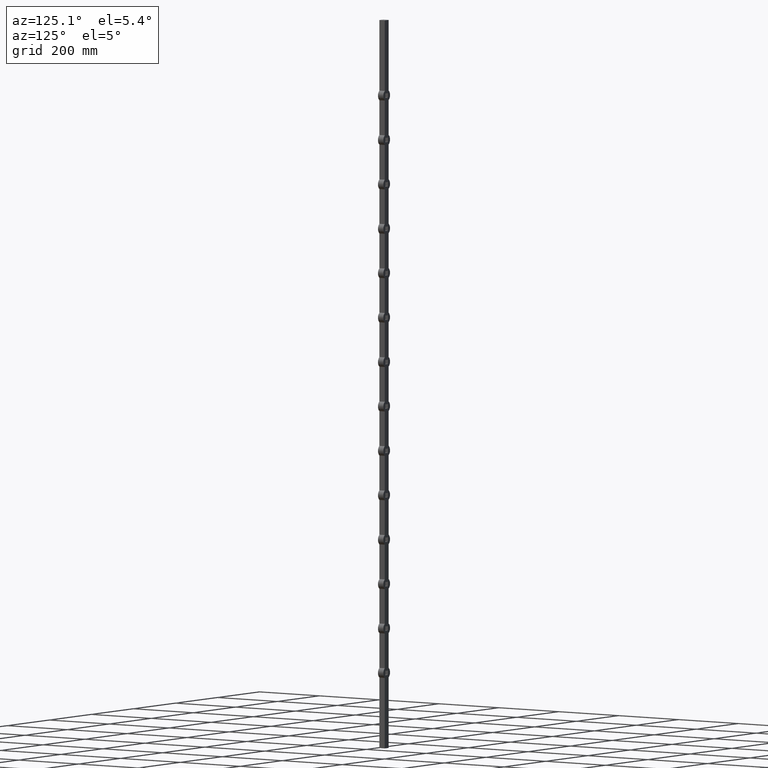
[diagram: clean part render]
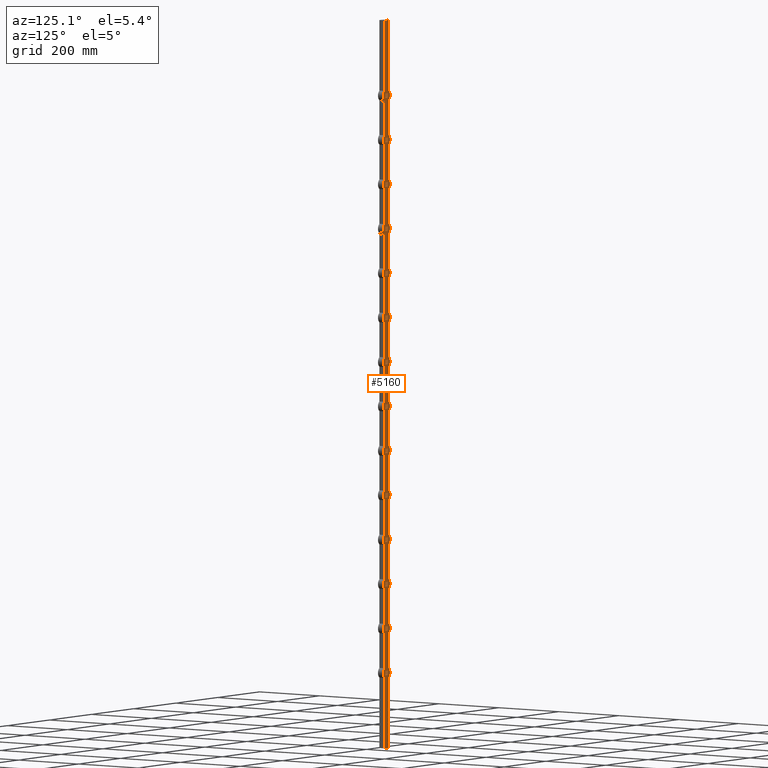
[diagram: same view with one face highlighted and labeled with its STEP entity id]
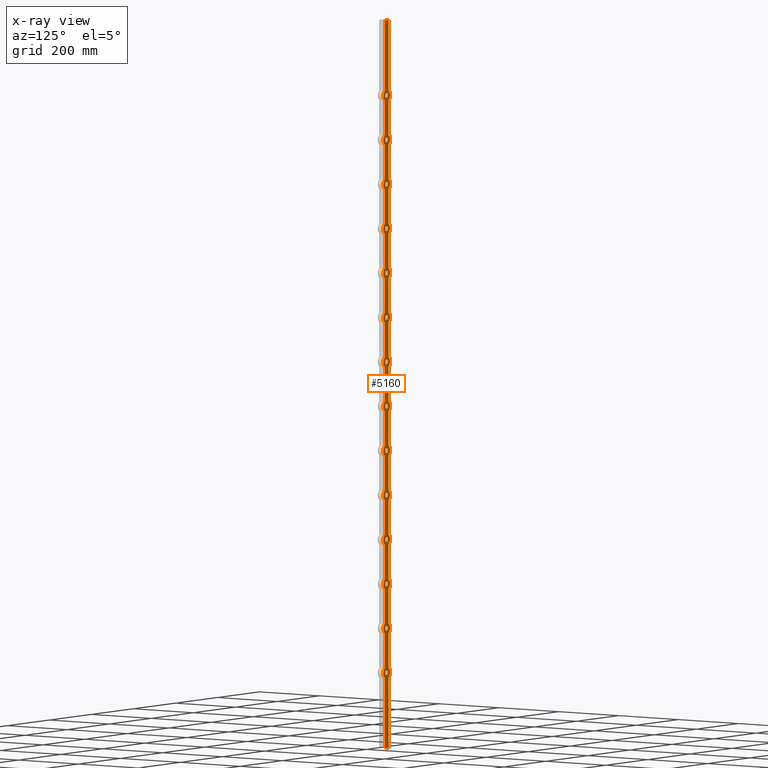
[diagram: x-ray of the same camera — body ghosted, the highlighted face saturated]
A machine part, auxiliary view. The second image highlights one B-rep face of the part: STEP entity #5160.
The next image is the same camera in x-ray: the body ghosted, the highlighted face saturated — about 0% of this face is hidden behind the body in this view.
In plain terms, the highlighted planar face has unit normal (0, -1, 0).
Its self-contained STEP definition (entity closure, byte-faithful):
#7 = FACE_BOUND ( 'NONE', #7458, .T. ) ;
#9 = DIRECTION ( 'NONE',  ( 0.000000000000000000, 1.000000000000000000, 0.000000000000000000 ) ) ;
#40 = LINE ( 'NONE', #3055, #4897 ) ;
#41 = EDGE_CURVE ( 'NONE', #3293, #4768, #711, .T. ) ;
#54 = EDGE_CURVE ( 'NONE', #9053, #8679, #392, .T. ) ;
#55 = ORIENTED_EDGE ( 'NONE', *, *, #341, .F. ) ;
#66 = CARTESIAN_POINT ( 'NONE',  ( -6.000000000000006217, 9.000000000000000000, 787.0000000000000000 ) ) ;
#73 = EDGE_CURVE ( 'NONE', #1934, #8354, #7788, .T. ) ;
#78 = EDGE_CURVE ( 'NONE', #10051, #4482, #9461, .T. ) ;
#79 = CARTESIAN_POINT ( 'NONE',  ( -6.000000000000004441, 9.000000000000000000, -543.0000000000001137 ) ) ;
#91 = AXIS2_PLACEMENT_3D ( 'NONE', #189, #7753, #8777 ) ;
#98 = EDGE_CURVE ( 'NONE', #7750, #2782, #13494, .T. ) ;
#101 = CARTESIAN_POINT ( 'NONE',  ( -6.000000000000006217, 9.000000000000000000, -432.9999999999998295 ) ) ;
#131 = LINE ( 'NONE', #2314, #10389 ) ;
#136 = CARTESIAN_POINT ( 'NONE',  ( -8.999999999999998224, 9.000000000000000000, -413.7712434446769976 ) ) ;
#152 = CARTESIAN_POINT ( 'NONE',  ( 8.999999999999996447, 9.000000000000000000, 169.7712434446770828 ) ) ;
#153 = ORIENTED_EDGE ( 'NONE', *, *, #11019, .T. ) ;
#172 = CARTESIAN_POINT ( 'NONE',  ( 0.000000000000000000, 9.000000000000000000, -426.9999999999999432 ) ) ;
#188 = CARTESIAN_POINT ( 'NONE',  ( -9.000000000000001776, 9.000000000000000000, 1000.000000000000000 ) ) ;
#189 = CARTESIAN_POINT ( 'NONE',  ( 0.000000000000000000, 9.000000000000000000, 61.00000000000005684 ) ) ;
#224 = CARTESIAN_POINT ( 'NONE',  ( -6.000000000000006217, 9.000000000000000000, -310.9999999999998295 ) ) ;
#250 = CARTESIAN_POINT ( 'NONE',  ( -6.000000000000006217, 9.000000000000000000, -188.9999999999999432 ) ) ;
#272 = DIRECTION ( 'NONE',  ( -0.000000000000000000, -0.000000000000000000, -1.000000000000000000 ) ) ;
#296 = CIRCLE ( 'NONE', #12749, 16.00000000000001421 ) ;
#304 = VERTEX_POINT ( 'NONE', #3735 ) ;
#312 = LINE ( 'NONE', #4401, #3308 ) ;
#341 = EDGE_CURVE ( 'NONE', #2006, #13163, #8112, .T. ) ;
#345 = VECTOR ( 'NONE', #5101, 1000.000000000000000 ) ;
#356 = FACE_BOUND ( 'NONE', #3003, .T. ) ;
#362 = CARTESIAN_POINT ( 'NONE',  ( -8.999999999999998224, 9.000000000000000000, -657.7712434446769976 ) ) ;
#364 = CARTESIAN_POINT ( 'NONE',  ( -9.000000000000001776, 9.000000000000000000, 1000.000000000000000 ) ) ;
#392 = LINE ( 'NONE', #4327, #11680 ) ;
#451 = AXIS2_PLACEMENT_3D ( 'NONE', #4194, #11746, #12960 ) ;
#460 = DIRECTION ( 'NONE',  ( -0.000000000000000000, -0.000000000000000000, -1.000000000000000000 ) ) ;
#463 = DIRECTION ( 'NONE',  ( -0.000000000000000000, -0.000000000000000000, -1.000000000000000000 ) ) ;
#483 = VERTEX_POINT ( 'NONE', #3442 ) ;
#502 = CARTESIAN_POINT ( 'NONE',  ( 8.999999999999996447, 9.000000000000000000, 1000.000000000000000 ) ) ;
#520 = EDGE_CURVE ( 'NONE', #12482, #4609, #12839, .T. ) ;
#538 = ORIENTED_EDGE ( 'NONE', *, *, #3665, .T. ) ;
#606 = VECTOR ( 'NONE', #4179, 1000.000000000000000 ) ;
#610 = ORIENTED_EDGE ( 'NONE', *, *, #4364, .F. ) ;
#647 = EDGE_CURVE ( 'NONE', #1802, #12072, #4225, .T. ) ;
#651 = LINE ( 'NONE', #12595, #8045 ) ;
#666 = CARTESIAN_POINT ( 'NONE',  ( 8.999999999999996447, 9.000000000000000000, -74.22875655532290295 ) ) ;
#684 = DIRECTION ( 'NONE',  ( 1.000000000000000000, 0.000000000000000000, 0.000000000000000000 ) ) ;
#685 = CARTESIAN_POINT ( 'NONE',  ( 6.000000000000004441, 9.000000000000000000, 665.0000000000000000 ) ) ;
#688 = EDGE_CURVE ( 'NONE', #5500, #7805, #1383, .T. ) ;
#698 = CARTESIAN_POINT ( 'NONE',  ( 8.999999999999996447, 9.000000000000000000, -196.2287565553228887 ) ) ;
#703 = ORIENTED_EDGE ( 'NONE', *, *, #12329, .F. ) ;
#711 = LINE ( 'NONE', #66, #10647 ) ;
#718 = ORIENTED_EDGE ( 'NONE', *, *, #3605, .T. ) ;
#751 = CARTESIAN_POINT ( 'NONE',  ( 8.999999999999996447, 9.000000000000000000, 1000.000000000000000 ) ) ;
#784 = VERTEX_POINT ( 'NONE', #5909 ) ;
#796 = CARTESIAN_POINT ( 'NONE',  ( 6.000000000000004441, 9.000000000000000000, 299.0000000000000568 ) ) ;
#808 = ORIENTED_EDGE ( 'NONE', *, *, #41, .F. ) ;
#825 = CIRCLE ( 'NONE', #9537, 16.00000000000001421 ) ;
#834 = VECTOR ( 'NONE', #8390, 1000.000000000000000 ) ;
#845 = DIRECTION ( 'NONE',  ( -0.000000000000000000, -0.000000000000000000, -1.000000000000000000 ) ) ;
#866 = ORIENTED_EDGE ( 'NONE', *, *, #11102, .F. ) ;
#874 = ORIENTED_EDGE ( 'NONE', *, *, #7488, .F. ) ;
#883 = VECTOR ( 'NONE', #8651, 1000.000000000000000 ) ;
#886 = CARTESIAN_POINT ( 'NONE',  ( -6.000000000000006217, 9.000000000000000000, -432.9999999999998295 ) ) ;
#891 = DIRECTION ( 'NONE',  ( 0.000000000000000000, 1.000000000000000000, 0.000000000000000000 ) ) ;
#912 = CARTESIAN_POINT ( 'NONE',  ( 8.999999999999996447, 9.000000000000000000, -535.7712434446771113 ) ) ;
#945 = EDGE_CURVE ( 'NONE', #1093, #6131, #4719, .T. ) ;
#965 = ORIENTED_EDGE ( 'NONE', *, *, #7600, .T. ) ;
#975 = EDGE_CURVE ( 'NONE', #3120, #784, #12988, .T. ) ;
#982 = EDGE_LOOP ( 'NONE', ( #1887, #874, #7817, #2443 ) ) ;
#1007 = VECTOR ( 'NONE', #5925, 1000.000000000000000 ) ;
#1011 = LINE ( 'NONE', #2990, #12813 ) ;
#1022 = EDGE_CURVE ( 'NONE', #4163, #4244, #3553, .T. ) ;
#1032 = EDGE_CURVE ( 'NONE', #9525, #2675, #5058, .T. ) ;
#1061 = CARTESIAN_POINT ( 'NONE',  ( -6.000000000000006217, 9.000000000000000000, -66.99999999999994316 ) ) ;
#1084 = DIRECTION ( 'NONE',  ( -1.000000000000000000, -0.000000000000000000, -0.000000000000000000 ) ) ;
#1093 = VERTEX_POINT ( 'NONE', #10916 ) ;
#1104 = EDGE_CURVE ( 'NONE', #5636, #3582, #11146, .T. ) ;
#1113 = LINE ( 'NONE', #6913, #6651 ) ;
#1116 = CARTESIAN_POINT ( 'NONE',  ( 8.999999999999996447, 9.000000000000000000, 47.77124344467708994 ) ) ;
#1127 = EDGE_CURVE ( 'NONE', #10411, #7109, #13655, .T. ) ;
#1140 = EDGE_CURVE ( 'NONE', #9502, #10575, #9776, .T. ) ;
#1220 = EDGE_CURVE ( 'NONE', #2246, #10834, #10939, .T. ) ;
#1221 = ORIENTED_EDGE ( 'NONE', *, *, #10469, .T. ) ;
#1248 = VERTEX_POINT ( 'NONE', #2287 ) ;
#1256 = ORIENTED_EDGE ( 'NONE', *, *, #7438, .F. ) ;
#1281 = CARTESIAN_POINT ( 'NONE',  ( 8.999999999999996447, 9.000000000000000000, 1000.000000000000000 ) ) ;
#1300 = CARTESIAN_POINT ( 'NONE',  ( -9.000000000000001776, 9.000000000000000000, 806.2287565553230024 ) ) ;
#1304 = VERTEX_POINT ( 'NONE', #7783 ) ;
#1362 = ORIENTED_EDGE ( 'NONE', *, *, #12058, .F. ) ;
#1363 = LINE ( 'NONE', #12392, #12487 ) ;
#1380 = CARTESIAN_POINT ( 'NONE',  ( 8.999999999999996447, 9.000000000000000000, -684.2287565553228887 ) ) ;
#1383 = LINE ( 'NONE', #13458, #13158 ) ;
#1417 = DIRECTION ( 'NONE',  ( -0.000000000000000000, -0.000000000000000000, -1.000000000000000000 ) ) ;
#1418 = DIRECTION ( 'NONE',  ( -1.000000000000000000, -0.000000000000000000, -0.000000000000000000 ) ) ;
#1419 = LINE ( 'NONE', #224, #10676 ) ;
#1436 = VERTEX_POINT ( 'NONE', #3136 ) ;
#1445 = EDGE_LOOP ( 'NONE', ( #11449, #4981, #1473, #5763 ) ) ;
#1452 = LINE ( 'NONE', #6060, #2620 ) ;
#1473 = ORIENTED_EDGE ( 'NONE', *, *, #5347, .F. ) ;
#1496 = VECTOR ( 'NONE', #1709, 1000.000000000000000 ) ;
#1501 = DIRECTION ( 'NONE',  ( 0.000000000000000000, 0.000000000000000000, 1.000000000000000000 ) ) ;
#1511 = LINE ( 'NONE', #8026, #7397 ) ;
#1522 = EDGE_CURVE ( 'NONE', #10212, #4710, #3512, .T. ) ;
#1523 = DIRECTION ( 'NONE',  ( -1.445602896647337931E-16, -0.000000000000000000, -1.000000000000000000 ) ) ;
#1524 = FACE_BOUND ( 'NONE', #2873, .T. ) ;
#1533 = AXIS2_PLACEMENT_3D ( 'NONE', #172, #4412, #5553 ) ;
#1580 = CARTESIAN_POINT ( 'NONE',  ( -9.000000000000001776, 9.000000000000000000, 1000.000000000000000 ) ) ;
#1586 = EDGE_CURVE ( 'NONE', #3756, #6590, #3019, .T. ) ;
#1603 = VECTOR ( 'NONE', #4377, 1000.000000000000000 ) ;
#1605 = VECTOR ( 'NONE', #5557, 1000.000000000000000 ) ;
#1612 = VERTEX_POINT ( 'NONE', #5436 ) ;
#1696 = VERTEX_POINT ( 'NONE', #8064 ) ;
#1702 = DIRECTION ( 'NONE',  ( 0.000000000000000000, 0.000000000000000000, 1.000000000000000000 ) ) ;
#1709 = DIRECTION ( 'NONE',  ( -1.445602896647337931E-16, -0.000000000000000000, -1.000000000000000000 ) ) ;
#1721 = CARTESIAN_POINT ( 'NONE',  ( -6.000000000000006217, 9.000000000000000000, 543.0000000000000000 ) ) ;
#1737 = LINE ( 'NONE', #11014, #12386 ) ;
#1790 = ORIENTED_EDGE ( 'NONE', *, *, #4405, .T. ) ;
#1802 = VERTEX_POINT ( 'NONE', #1810 ) ;
#1810 = CARTESIAN_POINT ( 'NONE',  ( -8.999999999999998224, 9.000000000000000000, 535.7712434446771113 ) ) ;
#1817 = CARTESIAN_POINT ( 'NONE',  ( -8.999999999999998224, 9.000000000000000000, 291.7712434446771113 ) ) ;
#1820 = EDGE_LOOP ( 'NONE', ( #5491, #5893, #8466, #4107 ) ) ;
#1827 = CARTESIAN_POINT ( 'NONE',  ( -8.999999999999998224, 9.000000000000000000, -318.2287565553227751 ) ) ;
#1831 = EDGE_CURVE ( 'NONE', #6589, #2755, #825, .T. ) ;
#1837 = AXIS2_PLACEMENT_3D ( 'NONE', #5948, #13490, #7151 ) ;
#1848 = DIRECTION ( 'NONE',  ( -1.000000000000000000, -0.000000000000000000, -0.000000000000000000 ) ) ;
#1855 = FACE_BOUND ( 'NONE', #1445, .T. ) ;
#1867 = CARTESIAN_POINT ( 'NONE',  ( -9.000000000000001776, 9.000000000000000000, 1000.000000000000000 ) ) ;
#1886 = CARTESIAN_POINT ( 'NONE',  ( 6.000000000000003553, 9.000000000000000000, -555.0000000000001137 ) ) ;
#1887 = ORIENTED_EDGE ( 'NONE', *, *, #10880, .F. ) ;
#1897 = EDGE_CURVE ( 'NONE', #8179, #1696, #4841, .T. ) ;
#1900 = VERTEX_POINT ( 'NONE', #9770 ) ;
#1908 = CARTESIAN_POINT ( 'NONE',  ( 8.999999999999996447, 9.000000000000000000, -806.2287565553227751 ) ) ;
#1925 = ORIENTED_EDGE ( 'NONE', *, *, #9563, .T. ) ;
#1927 = AXIS2_PLACEMENT_3D ( 'NONE', #13309, #2398, #11004 ) ;
#1934 = VERTEX_POINT ( 'NONE', #1061 ) ;
#1945 = VERTEX_POINT ( 'NONE', #12763 ) ;
#1959 = ORIENTED_EDGE ( 'NONE', *, *, #1220, .T. ) ;
#1964 = CARTESIAN_POINT ( 'NONE',  ( 0.000000000000000000, 9.000000000000000000, -670.9999999999998863 ) ) ;
#1972 = LINE ( 'NONE', #4352, #13083 ) ;
#1977 = DIRECTION ( 'NONE',  ( -1.445602896647337931E-16, -0.000000000000000000, -1.000000000000000000 ) ) ;
#1979 = VERTEX_POINT ( 'NONE', #3037 ) ;
#1986 = DIRECTION ( 'NONE',  ( 0.000000000000000000, 0.000000000000000000, 1.000000000000000000 ) ) ;
#1988 = EDGE_CURVE ( 'NONE', #10295, #1612, #4500, .T. ) ;
#2006 = VERTEX_POINT ( 'NONE', #5520 ) ;
#2049 = CARTESIAN_POINT ( 'NONE',  ( 0.000000000000000000, 9.000000000000000000, -182.9999999999999432 ) ) ;
#2056 = VECTOR ( 'NONE', #9426, 1000.000000000000000 ) ;
#2062 = CARTESIAN_POINT ( 'NONE',  ( -9.000000000000001776, 9.000000000000000000, 1000.000000000000000 ) ) ;
#2075 = VECTOR ( 'NONE', #7248, 1000.000000000000000 ) ;
#2084 = EDGE_CURVE ( 'NONE', #6312, #8115, #5356, .T. ) ;
#2098 = ORIENTED_EDGE ( 'NONE', *, *, #8090, .T. ) ;
#2118 = DIRECTION ( 'NONE',  ( 0.000000000000000000, 0.000000000000000000, 1.000000000000000000 ) ) ;
#2136 = LINE ( 'NONE', #5868, #6838 ) ;
#2164 = CARTESIAN_POINT ( 'NONE',  ( 6.000000000000004441, 9.000000000000000000, -798.9999999999998863 ) ) ;
#2179 = EDGE_CURVE ( 'NONE', #9294, #6796, #6521, .T. ) ;
#2225 = CARTESIAN_POINT ( 'NONE',  ( 0.000000000000000000, 9.000000000000000000, 549.0000000000000000 ) ) ;
#2241 = EDGE_LOOP ( 'NONE', ( #9823, #2749, #4120, #3874 ) ) ;
#2246 = VERTEX_POINT ( 'NONE', #12310 ) ;
#2250 = DIRECTION ( 'NONE',  ( -0.000000000000000000, -0.000000000000000000, -1.000000000000000000 ) ) ;
#2264 = AXIS2_PLACEMENT_3D ( 'NONE', #4646, #10022, #2543 ) ;
#2266 = VERTEX_POINT ( 'NONE', #6949 ) ;
#2287 = CARTESIAN_POINT ( 'NONE',  ( 8.999999999999996447, 9.000000000000000000, -779.7712434446768839 ) ) ;
#2295 = LINE ( 'NONE', #751, #2961 ) ;
#2297 = CARTESIAN_POINT ( 'NONE',  ( -8.999999999999998224, 9.000000000000000000, -779.7712434446768839 ) ) ;
#2303 = CARTESIAN_POINT ( 'NONE',  ( 0.000000000000000000, 9.000000000000000000, -182.9999999999999432 ) ) ;
#2305 = ORIENTED_EDGE ( 'NONE', *, *, #6490, .T. ) ;
#2307 = EDGE_CURVE ( 'NONE', #4482, #10830, #7895, .T. ) ;
#2314 = CARTESIAN_POINT ( 'NONE',  ( -6.000000000000006217, 9.000000000000000000, 665.0000000000000000 ) ) ;
#2315 = LINE ( 'NONE', #11269, #2477 ) ;
#2334 = CARTESIAN_POINT ( 'NONE',  ( 6.000000000000003553, 9.000000000000000000, -310.9999999999998295 ) ) ;
#2348 = DIRECTION ( 'NONE',  ( 0.000000000000000000, -1.000000000000000000, 0.000000000000000000 ) ) ;
#2363 = LINE ( 'NONE', #3868, #2853 ) ;
#2374 = LINE ( 'NONE', #7018, #3035 ) ;
#2385 = EDGE_CURVE ( 'NONE', #4609, #11468, #10767, .T. ) ;
#2398 = DIRECTION ( 'NONE',  ( 0.000000000000000000, 1.000000000000000000, 0.000000000000000000 ) ) ;
#2417 = CARTESIAN_POINT ( 'NONE',  ( -6.000000000000006217, 9.000000000000000000, 543.0000000000000000 ) ) ;
#2436 = CARTESIAN_POINT ( 'NONE',  ( -8.999999999999998224, 9.000000000000000000, 74.22875655532301664 ) ) ;
#2443 = ORIENTED_EDGE ( 'NONE', *, *, #688, .F. ) ;
#2445 = LINE ( 'NONE', #11284, #2769 ) ;
#2452 = DIRECTION ( 'NONE',  ( -0.000000000000000000, -0.000000000000000000, -1.000000000000000000 ) ) ;
#2474 = EDGE_CURVE ( 'NONE', #13912, #13044, #4334, .T. ) ;
#2477 = VECTOR ( 'NONE', #9221, 1000.000000000000000 ) ;
#2514 = AXIS2_PLACEMENT_3D ( 'NONE', #7607, #8681, #10766 ) ;
#2528 = DIRECTION ( 'NONE',  ( -0.000000000000000000, -0.000000000000000000, -1.000000000000000000 ) ) ;
#2543 = DIRECTION ( 'NONE',  ( 0.000000000000000000, 0.000000000000000000, 1.000000000000000000 ) ) ;
#2578 = EDGE_CURVE ( 'NONE', #10212, #7043, #13111, .T. ) ;
#2593 = VERTEX_POINT ( 'NONE', #1827 ) ;
#2598 = EDGE_CURVE ( 'NONE', #1436, #5701, #12459, .T. ) ;
#2620 = VECTOR ( 'NONE', #2742, 1000.000000000000000 ) ;
#2625 = EDGE_CURVE ( 'NONE', #10700, #3623, #1511, .T. ) ;
#2642 = LINE ( 'NONE', #8174, #5156 ) ;
#2675 = VERTEX_POINT ( 'NONE', #4701 ) ;
#2679 = VECTOR ( 'NONE', #7104, 1000.000000000000000 ) ;
#2742 = DIRECTION ( 'NONE',  ( -0.000000000000000000, -0.000000000000000000, -1.000000000000000000 ) ) ;
#2749 = ORIENTED_EDGE ( 'NONE', *, *, #3908, .F. ) ;
#2752 = VECTOR ( 'NONE', #6487, 1000.000000000000000 ) ;
#2755 = VERTEX_POINT ( 'NONE', #1300 ) ;
#2765 = ORIENTED_EDGE ( 'NONE', *, *, #7070, .F. ) ;
#2769 = VECTOR ( 'NONE', #4712, 1000.000000000000000 ) ;
#2782 = VERTEX_POINT ( 'NONE', #10223 ) ;
#2795 = DIRECTION ( 'NONE',  ( 1.445602896647337931E-16, 0.000000000000000000, 1.000000000000000000 ) ) ;
#2815 = VECTOR ( 'NONE', #1084, 1000.000000000000000 ) ;
#2853 = VECTOR ( 'NONE', #4856, 1000.000000000000000 ) ;
#2868 = VECTOR ( 'NONE', #2452, 1000.000000000000000 ) ;
#2872 = CARTESIAN_POINT ( 'NONE',  ( -6.000000000000004441, 9.000000000000000000, 189.0000000000000568 ) ) ;
#2873 = EDGE_LOOP ( 'NONE', ( #8695, #7016, #3467, #5672 ) ) ;
#2892 = VECTOR ( 'NONE', #6431, 1000.000000000000000 ) ;
#2912 = VERTEX_POINT ( 'NONE', #13457 ) ;
#2927 = LINE ( 'NONE', #5731, #11196 ) ;
#2928 = CARTESIAN_POINT ( 'NONE',  ( 6.000000000000006217, 9.000000000000000000, -298.9999999999998295 ) ) ;
#2930 = CARTESIAN_POINT ( 'NONE',  ( -6.000000000000004441, 9.000000000000000000, -665.0000000000000000 ) ) ;
#2945 = EDGE_CURVE ( 'NONE', #8840, #2912, #10930, .T. ) ;
#2946 = LINE ( 'NONE', #6451, #1605 ) ;
#2949 = LINE ( 'NONE', #13512, #3626 ) ;
#2961 = VECTOR ( 'NONE', #5062, 1000.000000000000000 ) ;
#2966 = EDGE_CURVE ( 'NONE', #12615, #5886, #651, .T. ) ;
#2986 = ORIENTED_EDGE ( 'NONE', *, *, #9857, .T. ) ;
#2987 = DIRECTION ( 'NONE',  ( -1.000000000000000000, -0.000000000000000000, -0.000000000000000000 ) ) ;
#2990 = CARTESIAN_POINT ( 'NONE',  ( -6.000000000000006217, 9.000000000000000000, -798.9999999999998863 ) ) ;
#3000 = CARTESIAN_POINT ( 'NONE',  ( 8.999999999999996447, 9.000000000000000000, -440.2287565553228887 ) ) ;
#3003 = EDGE_LOOP ( 'NONE', ( #12419, #10878, #11236, #3344 ) ) ;
#3014 = LINE ( 'NONE', #4926, #2679 ) ;
#3017 = CARTESIAN_POINT ( 'NONE',  ( -6.000000000000004441, 9.000000000000000000, 67.00000000000005684 ) ) ;
#3019 = LINE ( 'NONE', #10913, #8071 ) ;
#3035 = VECTOR ( 'NONE', #3847, 1000.000000000000000 ) ;
#3037 = CARTESIAN_POINT ( 'NONE',  ( 8.999999999999996447, 9.000000000000000000, 1000.000000000000000 ) ) ;
#3040 = CARTESIAN_POINT ( 'NONE',  ( 8.999999999999996447, 9.000000000000000000, 657.7712434446771113 ) ) ;
#3048 = LINE ( 'NONE', #8065, #7948 ) ;
#3055 = CARTESIAN_POINT ( 'NONE',  ( -9.000000000000001776, 9.000000000000000000, 1000.000000000000000 ) ) ;
#3061 = DIRECTION ( 'NONE',  ( 1.445602896647337931E-16, 0.000000000000000000, 1.000000000000000000 ) ) ;
#3090 = DIRECTION ( 'NONE',  ( 0.000000000000000000, 0.000000000000000000, 1.000000000000000000 ) ) ;
#3103 = ORIENTED_EDGE ( 'NONE', *, *, #11916, .F. ) ;
#3120 = VERTEX_POINT ( 'NONE', #8785 ) ;
#3124 = DIRECTION ( 'NONE',  ( 0.000000000000000000, 0.000000000000000000, 1.000000000000000000 ) ) ;
#3136 = CARTESIAN_POINT ( 'NONE',  ( 8.999999999999996447, 9.000000000000000000, 562.2287565553230024 ) ) ;
#3153 = ORIENTED_EDGE ( 'NONE', *, *, #10186, .F. ) ;
#3155 = DIRECTION ( 'NONE',  ( 1.445602896647337931E-16, 0.000000000000000000, 1.000000000000000000 ) ) ;
#3160 = DIRECTION ( 'NONE',  ( -0.000000000000000000, -0.000000000000000000, -1.000000000000000000 ) ) ;
#3227 = CARTESIAN_POINT ( 'NONE',  ( -9.000000000000001776, 9.000000000000000000, 1000.000000000000000 ) ) ;
#3233 = CARTESIAN_POINT ( 'NONE',  ( 0.000000000000000000, 9.000000000000000000, -792.9999999999997726 ) ) ;
#3287 = DIRECTION ( 'NONE',  ( 1.000000000000000000, 0.000000000000000000, 0.000000000000000000 ) ) ;
#3293 = VERTEX_POINT ( 'NONE', #5897 ) ;
#3300 = CIRCLE ( 'NONE', #4677, 16.00000000000001421 ) ;
#3308 = VECTOR ( 'NONE', #1417, 1000.000000000000000 ) ;
#3313 = CARTESIAN_POINT ( 'NONE',  ( 0.000000000000000000, 9.000000000000000000, -549.0000000000000000 ) ) ;
#3329 = AXIS2_PLACEMENT_3D ( 'NONE', #7910, #3562, #6907 ) ;
#3344 = ORIENTED_EDGE ( 'NONE', *, *, #9131, .F. ) ;
#3370 = CARTESIAN_POINT ( 'NONE',  ( -6.000000000000004441, 9.000000000000000000, -54.99999999999993605 ) ) ;
#3440 = VERTEX_POINT ( 'NONE', #3000 ) ;
#3442 = CARTESIAN_POINT ( 'NONE',  ( -8.999999999999998224, 9.000000000000000000, -74.22875655532290295 ) ) ;
#3453 = EDGE_LOOP ( 'NONE', ( #7137, #12177, #7144, #1790, #55, #1221, #13386, #538, #7595, #2986, #6690, #13875, #3153, #11465, #13958, #4657, #5526, #4055, #3103, #12274, #8662, #2098, #8413, #8320, #9513, #8006, #4478, #5965, #1256, #5420, #2305, #12687, #5308, #10168, #5294, #5857, #3803, #4626, #7013, #12313, #11073, #718, #11700, #4186, #7536, #8129, #13700, #1925, #153, #6317, #1959, #965, #12542, #8496, #9659, #9646, #9269, #4099, #3755, #10242 ) ) ;
#3457 = CARTESIAN_POINT ( 'NONE',  ( 6.000000000000003553, 9.000000000000000000, 55.00000000000004974 ) ) ;
#3467 = ORIENTED_EDGE ( 'NONE', *, *, #9969, .F. ) ;
#3470 = CIRCLE ( 'NONE', #6868, 16.00000000000000000 ) ;
#3512 = CIRCLE ( 'NONE', #91, 16.00000000000000000 ) ;
#3515 = VECTOR ( 'NONE', #13337, 1000.000000000000000 ) ;
#3546 = CIRCLE ( 'NONE', #1837, 16.00000000000001421 ) ;
#3552 = CARTESIAN_POINT ( 'NONE',  ( 8.999999999999996447, 9.000000000000000000, 1000.000000000000000 ) ) ;
#3553 = LINE ( 'NONE', #9724, #9105 ) ;
#3562 = DIRECTION ( 'NONE',  ( 0.000000000000000000, 1.000000000000000000, 0.000000000000000000 ) ) ;
#3582 = VERTEX_POINT ( 'NONE', #2297 ) ;
#3595 = CARTESIAN_POINT ( 'NONE',  ( 6.000000000000006217, 9.000000000000000000, 555.0000000000000000 ) ) ;
#3596 = DIRECTION ( 'NONE',  ( 0.000000000000000000, 1.000000000000000000, 0.000000000000000000 ) ) ;
#3605 = EDGE_CURVE ( 'NONE', #3917, #12938, #9048, .T. ) ;
#3623 = VERTEX_POINT ( 'NONE', #3457 ) ;
#3624 = CARTESIAN_POINT ( 'NONE',  ( -6.000000000000006217, 9.000000000000000000, 299.0000000000000568 ) ) ;
#3626 = VECTOR ( 'NONE', #11469, 1000.000000000000000 ) ;
#3665 = EDGE_CURVE ( 'NONE', #10017, #11744, #10741, .T. ) ;
#3670 = CARTESIAN_POINT ( 'NONE',  ( -8.999999999999998224, 9.000000000000000000, -806.2287565553227751 ) ) ;
#3688 = DIRECTION ( 'NONE',  ( 1.000000000000000000, 0.000000000000000000, 0.000000000000000000 ) ) ;
#3735 = CARTESIAN_POINT ( 'NONE',  ( -8.999999999999998224, 9.000000000000000000, 169.7712434446770828 ) ) ;
#3749 = CIRCLE ( 'NONE', #1927, 16.00000000000001421 ) ;
#3755 = ORIENTED_EDGE ( 'NONE', *, *, #8529, .T. ) ;
#3756 = VERTEX_POINT ( 'NONE', #4289 ) ;
#3757 = VECTOR ( 'NONE', #12502, 1000.000000000000000 ) ;
#3777 = VECTOR ( 'NONE', #8530, 1000.000000000000000 ) ;
#3799 = VERTEX_POINT ( 'NONE', #79 ) ;
#3803 = ORIENTED_EDGE ( 'NONE', *, *, #7619, .T. ) ;
#3811 = CARTESIAN_POINT ( 'NONE',  ( 0.000000000000000000, 9.000000000000000000, -304.9999999999998295 ) ) ;
#3829 = EDGE_CURVE ( 'NONE', #6589, #10399, #7022, .T. ) ;
#3842 = CARTESIAN_POINT ( 'NONE',  ( 0.000000000000000000, 9.000000000000000000, -549.0000000000000000 ) ) ;
#3847 = DIRECTION ( 'NONE',  ( 1.000000000000000000, 0.000000000000000000, 0.000000000000000000 ) ) ;
#3868 = CARTESIAN_POINT ( 'NONE',  ( 6.000000000000004441, 9.000000000000000000, 421.0000000000000568 ) ) ;
#3874 = ORIENTED_EDGE ( 'NONE', *, *, #10825, .F. ) ;
#3890 = VERTEX_POINT ( 'NONE', #13546 ) ;
#3908 = EDGE_CURVE ( 'NONE', #6796, #9525, #2315, .T. ) ;
#3917 = VERTEX_POINT ( 'NONE', #4793 ) ;
#3918 = LINE ( 'NONE', #3624, #6604 ) ;
#3931 = VERTEX_POINT ( 'NONE', #10259 ) ;
#3950 = ORIENTED_EDGE ( 'NONE', *, *, #9217, .F. ) ;
#3951 = DIRECTION ( 'NONE',  ( 0.000000000000000000, 0.000000000000000000, 1.000000000000000000 ) ) ;
#3989 = AXIS2_PLACEMENT_3D ( 'NONE', #10139, #9947, #1501 ) ;
#4007 = CARTESIAN_POINT ( 'NONE',  ( -9.000000000000001776, 9.000000000000000000, -47.77124344467699046 ) ) ;
#4011 = CARTESIAN_POINT ( 'NONE',  ( -6.000000000000004441, 9.000000000000000000, -786.9999999999998863 ) ) ;
#4027 = DIRECTION ( 'NONE',  ( 1.445602896647337931E-16, 0.000000000000000000, 1.000000000000000000 ) ) ;
#4048 = DIRECTION ( 'NONE',  ( 0.000000000000000000, 0.000000000000000000, 1.000000000000000000 ) ) ;
#4049 = VECTOR ( 'NONE', #5438, 1000.000000000000000 ) ;
#4055 = ORIENTED_EDGE ( 'NONE', *, *, #13050, .T. ) ;
#4072 = CARTESIAN_POINT ( 'NONE',  ( -6.000000000000004441, 9.000000000000000000, 433.0000000000000568 ) ) ;
#4076 = CARTESIAN_POINT ( 'NONE',  ( 6.000000000000004441, 9.000000000000000000, -555.0000000000001137 ) ) ;
#4083 = ORIENTED_EDGE ( 'NONE', *, *, #6054, .F. ) ;
#4084 = ORIENTED_EDGE ( 'NONE', *, *, #11271, .F. ) ;
#4099 = ORIENTED_EDGE ( 'NONE', *, *, #4281, .T. ) ;
#4107 = ORIENTED_EDGE ( 'NONE', *, *, #1586, .F. ) ;
#4116 = DIRECTION ( 'NONE',  ( 0.000000000000000000, 1.000000000000000000, 0.000000000000000000 ) ) ;
#4120 = ORIENTED_EDGE ( 'NONE', *, *, #2179, .F. ) ;
#4124 = ORIENTED_EDGE ( 'NONE', *, *, #13354, .F. ) ;
#4145 = CARTESIAN_POINT ( 'NONE',  ( -9.000000000000001776, 9.000000000000000000, 1000.000000000000000 ) ) ;
#4163 = VERTEX_POINT ( 'NONE', #10348 ) ;
#4179 = DIRECTION ( 'NONE',  ( -0.000000000000000000, -0.000000000000000000, -1.000000000000000000 ) ) ;
#4186 = ORIENTED_EDGE ( 'NONE', *, *, #10777, .T. ) ;
#4190 = CARTESIAN_POINT ( 'NONE',  ( -9.000000000000001776, 9.000000000000000000, -1000.000000000000000 ) ) ;
#4192 = EDGE_CURVE ( 'NONE', #3890, #11217, #13922, .T. ) ;
#4194 = CARTESIAN_POINT ( 'NONE',  ( 0.000000000000000000, 9.000000000000000000, 305.0000000000000568 ) ) ;
#4204 = FACE_BOUND ( 'NONE', #13349, .T. ) ;
#4209 = CARTESIAN_POINT ( 'NONE',  ( 8.999999999999996447, 9.000000000000000000, -657.7712434446769976 ) ) ;
#4222 = LINE ( 'NONE', #6843, #11992 ) ;
#4225 = LINE ( 'NONE', #364, #4731 ) ;
#4244 = VERTEX_POINT ( 'NONE', #9635 ) ;
#4273 = LINE ( 'NONE', #10845, #1603 ) ;
#4281 = EDGE_CURVE ( 'NONE', #1248, #7318, #6491, .T. ) ;
#4289 = CARTESIAN_POINT ( 'NONE',  ( 6.000000000000003553, 9.000000000000000000, 421.0000000000000568 ) ) ;
#4327 = CARTESIAN_POINT ( 'NONE',  ( -6.000000000000006217, 9.000000000000000000, 55.00000000000004974 ) ) ;
#4334 = LINE ( 'NONE', #685, #1496 ) ;
#4352 = CARTESIAN_POINT ( 'NONE',  ( -9.000000000000001776, 9.000000000000000000, 1000.000000000000000 ) ) ;
#4364 = EDGE_CURVE ( 'NONE', #3799, #8755, #10888, .T. ) ;
#4371 = VERTEX_POINT ( 'NONE', #11064 ) ;
#4377 = DIRECTION ( 'NONE',  ( 1.000000000000000000, 0.000000000000000000, 0.000000000000000000 ) ) ;
#4379 = VECTOR ( 'NONE', #13077, 1000.000000000000000 ) ;
#4384 = CARTESIAN_POINT ( 'NONE',  ( 6.000000000000006217, 9.000000000000000000, 433.0000000000000568 ) ) ;
#4401 = CARTESIAN_POINT ( 'NONE',  ( -9.000000000000001776, 9.000000000000000000, 1000.000000000000000 ) ) ;
#4405 = EDGE_CURVE ( 'NONE', #5636, #13163, #6313, .T. ) ;
#4412 = DIRECTION ( 'NONE',  ( 0.000000000000000000, 1.000000000000000000, 0.000000000000000000 ) ) ;
#4416 = ORIENTED_EDGE ( 'NONE', *, *, #11694, .F. ) ;
#4439 = DIRECTION ( 'NONE',  ( 0.000000000000000000, 0.000000000000000000, 1.000000000000000000 ) ) ;
#4477 = VECTOR ( 'NONE', #9506, 1000.000000000000000 ) ;
#4478 = ORIENTED_EDGE ( 'NONE', *, *, #3829, .F. ) ;
#4482 = VERTEX_POINT ( 'NONE', #4957 ) ;
#4500 = CIRCLE ( 'NONE', #2514, 16.00000000000001421 ) ;
#4503 = CARTESIAN_POINT ( 'NONE',  ( 6.000000000000003553, 9.000000000000000000, 787.0000000000000000 ) ) ;
#4536 = CARTESIAN_POINT ( 'NONE',  ( -6.000000000000004441, 9.000000000000000000, -543.0000000000001137 ) ) ;
#4543 = ORIENTED_EDGE ( 'NONE', *, *, #73, .F. ) ;
#4561 = VECTOR ( 'NONE', #7406, 1000.000000000000000 ) ;
#4609 = VERTEX_POINT ( 'NONE', #5055 ) ;
#4626 = ORIENTED_EDGE ( 'NONE', *, *, #1988, .T. ) ;
#4646 = CARTESIAN_POINT ( 'NONE',  ( 0.000000000000000000, 9.000000000000000000, 671.0000000000000000 ) ) ;
#4649 = LINE ( 'NONE', #9781, #9210 ) ;
#4657 = ORIENTED_EDGE ( 'NONE', *, *, #1522, .T. ) ;
#4677 = AXIS2_PLACEMENT_3D ( 'NONE', #6697, #7564, #8676 ) ;
#4687 = CARTESIAN_POINT ( 'NONE',  ( -8.999999999999998224, 9.000000000000000000, -196.2287565553228887 ) ) ;
#4691 = FACE_BOUND ( 'NONE', #10185, .T. ) ;
#4701 = CARTESIAN_POINT ( 'NONE',  ( 6.000000000000003553, 9.000000000000000000, -188.9999999999999432 ) ) ;
#4710 = VERTEX_POINT ( 'NONE', #2436 ) ;
#4712 = DIRECTION ( 'NONE',  ( -1.445602896647337931E-16, -0.000000000000000000, -1.000000000000000000 ) ) ;
#4719 = CIRCLE ( 'NONE', #8621, 16.00000000000001421 ) ;
#4731 = VECTOR ( 'NONE', #460, 1000.000000000000000 ) ;
#4768 = VERTEX_POINT ( 'NONE', #12890 ) ;
#4793 = CARTESIAN_POINT ( 'NONE',  ( 8.999999999999996447, 9.000000000000000000, 196.2287565553230024 ) ) ;
#4841 = LINE ( 'NONE', #10075, #6535 ) ;
#4856 = DIRECTION ( 'NONE',  ( -1.445602896647337931E-16, -0.000000000000000000, -1.000000000000000000 ) ) ;
#4860 = VERTEX_POINT ( 'NONE', #13569 ) ;
#4878 = AXIS2_PLACEMENT_3D ( 'NONE', #3811, #12499, #4885 ) ;
#4885 = DIRECTION ( 'NONE',  ( 0.000000000000000000, 0.000000000000000000, 1.000000000000000000 ) ) ;
#4886 = CIRCLE ( 'NONE', #11578, 16.00000000000001421 ) ;
#4897 = VECTOR ( 'NONE', #10499, 1000.000000000000000 ) ;
#4909 = LINE ( 'NONE', #502, #10310 ) ;
#4926 = CARTESIAN_POINT ( 'NONE',  ( -6.000000000000006217, 9.000000000000000000, -66.99999999999994316 ) ) ;
#4928 = DIRECTION ( 'NONE',  ( -1.000000000000000000, -0.000000000000000000, -0.000000000000000000 ) ) ;
#4957 = CARTESIAN_POINT ( 'NONE',  ( 6.000000000000006217, 9.000000000000000000, 311.0000000000000568 ) ) ;
#4976 = VECTOR ( 'NONE', #8232, 1000.000000000000000 ) ;
#4981 = ORIENTED_EDGE ( 'NONE', *, *, #9682, .F. ) ;
#4983 = EDGE_CURVE ( 'NONE', #9343, #8840, #13629, .T. ) ;
#4995 = DIRECTION ( 'NONE',  ( -0.000000000000000000, -0.000000000000000000, -1.000000000000000000 ) ) ;
#5002 = CARTESIAN_POINT ( 'NONE',  ( -8.999999999999998224, 9.000000000000000000, 562.2287565553230024 ) ) ;
#5024 = VECTOR ( 'NONE', #4027, 1000.000000000000000 ) ;
#5041 = CARTESIAN_POINT ( 'NONE',  ( -9.000000000000001776, 9.000000000000000000, 1000.000000000000000 ) ) ;
#5055 = CARTESIAN_POINT ( 'NONE',  ( -6.000000000000006217, 9.000000000000000000, 543.0000000000000000 ) ) ;
#5058 = LINE ( 'NONE', #5574, #4049 ) ;
#5062 = DIRECTION ( 'NONE',  ( -0.000000000000000000, -0.000000000000000000, -1.000000000000000000 ) ) ;
#5101 = DIRECTION ( 'NONE',  ( -1.445602896647337931E-16, -0.000000000000000000, -1.000000000000000000 ) ) ;
#5156 = VECTOR ( 'NONE', #11347, 1000.000000000000000 ) ;
#5160 = ADVANCED_FACE ( 'NONE', ( #4204, #7, #9925, #4691, #8238, #9591, #356, #8577, #13461, #10266, #8079, #1524, #9251, #7416, #1855 ), #9809, .F. ) ;
#5173 = CARTESIAN_POINT ( 'NONE',  ( -6.000000000000006217, 9.000000000000000000, -432.9999999999998295 ) ) ;
#5195 = DIRECTION ( 'NONE',  ( 0.000000000000000000, 1.000000000000000000, 0.000000000000000000 ) ) ;
#5208 = DIRECTION ( 'NONE',  ( 0.000000000000000000, 1.000000000000000000, 0.000000000000000000 ) ) ;
#5235 = CARTESIAN_POINT ( 'NONE',  ( 6.000000000000006217, 9.000000000000000000, -786.9999999999998863 ) ) ;
#5273 = EDGE_CURVE ( 'NONE', #2782, #3917, #9749, .T. ) ;
#5274 = VERTEX_POINT ( 'NONE', #6803 ) ;
#5283 = AXIS2_PLACEMENT_3D ( 'NONE', #11681, #5208, #3090 ) ;
#5287 = CIRCLE ( 'NONE', #8763, 16.00000000000001421 ) ;
#5294 = ORIENTED_EDGE ( 'NONE', *, *, #7267, .T. ) ;
#5308 = ORIENTED_EDGE ( 'NONE', *, *, #10142, .T. ) ;
#5326 = CARTESIAN_POINT ( 'NONE',  ( -6.000000000000006217, 9.000000000000000000, -66.99999999999994316 ) ) ;
#5331 = CARTESIAN_POINT ( 'NONE',  ( -6.000000000000006217, 9.000000000000000000, -677.0000000000000000 ) ) ;
#5347 = EDGE_CURVE ( 'NONE', #7174, #12256, #1011, .T. ) ;
#5356 = LINE ( 'NONE', #7744, #5699 ) ;
#5397 = VECTOR ( 'NONE', #10442, 1000.000000000000000 ) ;
#5408 = VERTEX_POINT ( 'NONE', #6029 ) ;
#5419 = EDGE_LOOP ( 'NONE', ( #7714, #13021, #9559, #10488 ) ) ;
#5420 = ORIENTED_EDGE ( 'NONE', *, *, #7055, .F. ) ;
#5436 = CARTESIAN_POINT ( 'NONE',  ( 8.999999999999996447, 9.000000000000000000, 413.7712434446771113 ) ) ;
#5438 = DIRECTION ( 'NONE',  ( -1.445602896647337931E-16, -0.000000000000000000, -1.000000000000000000 ) ) ;
#5475 = DIRECTION ( 'NONE',  ( 0.000000000000000000, 1.000000000000000000, 0.000000000000000000 ) ) ;
#5488 = AXIS2_PLACEMENT_3D ( 'NONE', #188, #2348, #9719 ) ;
#5491 = ORIENTED_EDGE ( 'NONE', *, *, #9107, .F. ) ;
#5493 = EDGE_CURVE ( 'NONE', #10843, #3582, #3300, .T. ) ;
#5500 = VERTEX_POINT ( 'NONE', #2334 ) ;
#5520 = CARTESIAN_POINT ( 'NONE',  ( -8.999999999999998224, 9.000000000000000000, -562.2287565553230024 ) ) ;
#5526 = ORIENTED_EDGE ( 'NONE', *, *, #9354, .F. ) ;
#5553 = DIRECTION ( 'NONE',  ( 0.000000000000000000, 0.000000000000000000, 1.000000000000000000 ) ) ;
#5557 = DIRECTION ( 'NONE',  ( -1.000000000000000000, -0.000000000000000000, -0.000000000000000000 ) ) ;
#5574 = CARTESIAN_POINT ( 'NONE',  ( 6.000000000000004441, 9.000000000000000000, -188.9999999999999432 ) ) ;
#5635 = EDGE_LOOP ( 'NONE', ( #11477, #9174, #4543, #7266 ) ) ;
#5636 = VERTEX_POINT ( 'NONE', #10042 ) ;
#5639 = LINE ( 'NONE', #12633, #7003 ) ;
#5651 = CARTESIAN_POINT ( 'NONE',  ( 8.999999999999996447, 9.000000000000000000, -169.7712434446769691 ) ) ;
#5662 = EDGE_CURVE ( 'NONE', #7796, #1248, #12875, .T. ) ;
#5671 = LINE ( 'NONE', #3017, #9043 ) ;
#5672 = ORIENTED_EDGE ( 'NONE', *, *, #1140, .F. ) ;
#5699 = VECTOR ( 'NONE', #7568, 1000.000000000000000 ) ;
#5701 = VERTEX_POINT ( 'NONE', #6979 ) ;
#5729 = CARTESIAN_POINT ( 'NONE',  ( 6.000000000000003553, 9.000000000000000000, 299.0000000000000568 ) ) ;
#5731 = CARTESIAN_POINT ( 'NONE',  ( 6.000000000000004441, 9.000000000000000000, -432.9999999999998295 ) ) ;
#5749 = VECTOR ( 'NONE', #9424, 1000.000000000000000 ) ;
#5751 = AXIS2_PLACEMENT_3D ( 'NONE', #3233, #9, #1986 ) ;
#5763 = ORIENTED_EDGE ( 'NONE', *, *, #7000, .F. ) ;
#5805 = CIRCLE ( 'NONE', #5867, 16.00000000000001421 ) ;
#5807 = EDGE_CURVE ( 'NONE', #3931, #3890, #9152, .T. ) ;
#5839 = CARTESIAN_POINT ( 'NONE',  ( -6.000000000000004441, 9.000000000000000000, -176.9999999999999432 ) ) ;
#5842 = DIRECTION ( 'NONE',  ( -0.000000000000000000, -0.000000000000000000, -1.000000000000000000 ) ) ;
#5856 = CARTESIAN_POINT ( 'NONE',  ( -9.000000000000001776, 9.000000000000000000, -1000.000000000000000 ) ) ;
#5857 = ORIENTED_EDGE ( 'NONE', *, *, #2598, .T. ) ;
#5867 = AXIS2_PLACEMENT_3D ( 'NONE', #2225, #9745, #10838 ) ;
#5868 = CARTESIAN_POINT ( 'NONE',  ( 6.000000000000004441, 9.000000000000000000, -310.9999999999998295 ) ) ;
#5886 = VERTEX_POINT ( 'NONE', #4503 ) ;
#5893 = ORIENTED_EDGE ( 'NONE', *, *, #10415, .F. ) ;
#5897 = CARTESIAN_POINT ( 'NONE',  ( -6.000000000000006217, 9.000000000000000000, 787.0000000000000000 ) ) ;
#5907 = CARTESIAN_POINT ( 'NONE',  ( -6.000000000000006217, 9.000000000000000000, 665.0000000000000000 ) ) ;
#5908 = EDGE_CURVE ( 'NONE', #12569, #13188, #1737, .T. ) ;
#5909 = CARTESIAN_POINT ( 'NONE',  ( 8.999999999999996447, 9.000000000000000000, 779.7712434446771113 ) ) ;
#5925 = DIRECTION ( 'NONE',  ( -1.000000000000000000, -0.000000000000000000, -0.000000000000000000 ) ) ;
#5948 = CARTESIAN_POINT ( 'NONE',  ( 0.000000000000000000, 9.000000000000000000, 427.0000000000000568 ) ) ;
#5964 = EDGE_CURVE ( 'NONE', #13699, #9502, #2927, .T. ) ;
#5965 = ORIENTED_EDGE ( 'NONE', *, *, #1831, .T. ) ;
#5990 = VECTOR ( 'NONE', #12992, 1000.000000000000000 ) ;
#6011 = AXIS2_PLACEMENT_3D ( 'NONE', #8658, #5195, #10429 ) ;
#6026 = EDGE_CURVE ( 'NONE', #1304, #10399, #9808, .T. ) ;
#6029 = CARTESIAN_POINT ( 'NONE',  ( 6.000000000000003553, 9.000000000000000000, -798.9999999999998863 ) ) ;
#6054 = EDGE_CURVE ( 'NONE', #7422, #10051, #3918, .T. ) ;
#6056 = CARTESIAN_POINT ( 'NONE',  ( 0.000000000000000000, 9.000000000000000000, 793.0000000000000000 ) ) ;
#6058 = LINE ( 'NONE', #5173, #4477 ) ;
#6060 = CARTESIAN_POINT ( 'NONE',  ( -9.000000000000001776, 9.000000000000000000, 1000.000000000000000 ) ) ;
#6066 = VECTOR ( 'NONE', #10640, 1000.000000000000000 ) ;
#6069 = CARTESIAN_POINT ( 'NONE',  ( 8.999999999999996447, 9.000000000000000000, 1000.000000000000000 ) ) ;
#6083 = CARTESIAN_POINT ( 'NONE',  ( -8.999999999999998224, 9.000000000000000000, 196.2287565553230024 ) ) ;
#6100 = CIRCLE ( 'NONE', #9849, 16.00000000000001421 ) ;
#6105 = VERTEX_POINT ( 'NONE', #4072 ) ;
#6131 = VERTEX_POINT ( 'NONE', #3040 ) ;
#6150 = LINE ( 'NONE', #2062, #606 ) ;
#6248 = LINE ( 'NONE', #13805, #6066 ) ;
#6290 = DIRECTION ( 'NONE',  ( -0.000000000000000000, -0.000000000000000000, -1.000000000000000000 ) ) ;
#6308 = VECTOR ( 'NONE', #1977, 1000.000000000000000 ) ;
#6310 = LINE ( 'NONE', #13657, #7828 ) ;
#6312 = VERTEX_POINT ( 'NONE', #1116 ) ;
#6313 = CIRCLE ( 'NONE', #3329, 16.00000000000001421 ) ;
#6317 = ORIENTED_EDGE ( 'NONE', *, *, #13600, .T. ) ;
#6386 = CARTESIAN_POINT ( 'NONE',  ( 6.000000000000004441, 9.000000000000000000, 177.0000000000000568 ) ) ;
#6431 = DIRECTION ( 'NONE',  ( 1.000000000000000000, 0.000000000000000000, 0.000000000000000000 ) ) ;
#6451 = CARTESIAN_POINT ( 'NONE',  ( -6.000000000000006217, 9.000000000000000000, 299.0000000000000568 ) ) ;
#6465 = ORIENTED_EDGE ( 'NONE', *, *, #2945, .F. ) ;
#6469 = DIRECTION ( 'NONE',  ( -1.000000000000000000, -0.000000000000000000, -0.000000000000000000 ) ) ;
#6487 = DIRECTION ( 'NONE',  ( 1.445602896647337931E-16, 0.000000000000000000, 1.000000000000000000 ) ) ;
#6490 = EDGE_CURVE ( 'NONE', #1979, #3120, #7797, .T. ) ;
#6491 = CIRCLE ( 'NONE', #5751, 16.00000000000001421 ) ;
#6503 = LINE ( 'NONE', #4190, #2815 ) ;
#6521 = LINE ( 'NONE', #12187, #3515 ) ;
#6524 = DIRECTION ( 'NONE',  ( 0.000000000000000000, 0.000000000000000000, 1.000000000000000000 ) ) ;
#6533 = DIRECTION ( 'NONE',  ( 0.000000000000000000, 1.000000000000000000, 0.000000000000000000 ) ) ;
#6535 = VECTOR ( 'NONE', #13363, 1000.000000000000000 ) ;
#6562 = VERTEX_POINT ( 'NONE', #1817 ) ;
#6589 = VERTEX_POINT ( 'NONE', #7178 ) ;
#6590 = VERTEX_POINT ( 'NONE', #12432 ) ;
#6599 = DIRECTION ( 'NONE',  ( 0.000000000000000000, 0.000000000000000000, 1.000000000000000000 ) ) ;
#6604 = VECTOR ( 'NONE', #10116, 1000.000000000000000 ) ;
#6651 = VECTOR ( 'NONE', #9037, 1000.000000000000000 ) ;
#6690 = ORIENTED_EDGE ( 'NONE', *, *, #10568, .F. ) ;
#6697 = CARTESIAN_POINT ( 'NONE',  ( 0.000000000000000000, 9.000000000000000000, -792.9999999999997726 ) ) ;
#6735 = EDGE_CURVE ( 'NONE', #11383, #11548, #4909, .T. ) ;
#6796 = VERTEX_POINT ( 'NONE', #5839 ) ;
#6797 = CARTESIAN_POINT ( 'NONE',  ( -6.000000000000006217, 9.000000000000000000, -677.0000000000000000 ) ) ;
#6803 = CARTESIAN_POINT ( 'NONE',  ( -6.000000000000004441, 9.000000000000000000, -420.9999999999998295 ) ) ;
#6838 = VECTOR ( 'NONE', #11303, 1000.000000000000000 ) ;
#6843 = CARTESIAN_POINT ( 'NONE',  ( -6.000000000000004441, 9.000000000000000000, -298.9999999999998295 ) ) ;
#6868 = AXIS2_PLACEMENT_3D ( 'NONE', #9706, #6533, #11919 ) ;
#6877 = EDGE_CURVE ( 'NONE', #8115, #12569, #12860, .T. ) ;
#6894 = CARTESIAN_POINT ( 'NONE',  ( -6.000000000000006217, 9.000000000000000000, 299.0000000000000568 ) ) ;
#6907 = DIRECTION ( 'NONE',  ( 0.000000000000000000, 0.000000000000000000, 1.000000000000000000 ) ) ;
#6913 = CARTESIAN_POINT ( 'NONE',  ( -6.000000000000006217, 9.000000000000000000, -677.0000000000000000 ) ) ;
#6946 = ORIENTED_EDGE ( 'NONE', *, *, #2966, .F. ) ;
#6949 = CARTESIAN_POINT ( 'NONE',  ( 8.999999999999996447, 9.000000000000000000, -1000.000000000000000 ) ) ;
#6954 = CARTESIAN_POINT ( 'NONE',  ( -6.000000000000004441, 9.000000000000000000, 67.00000000000005684 ) ) ;
#6979 = CARTESIAN_POINT ( 'NONE',  ( 8.999999999999996447, 9.000000000000000000, 535.7712434446771113 ) ) ;
#7000 = EDGE_CURVE ( 'NONE', #5408, #7174, #6248, .T. ) ;
#7002 = CARTESIAN_POINT ( 'NONE',  ( 8.999999999999996447, 9.000000000000000000, -562.2287565553230024 ) ) ;
#7003 = VECTOR ( 'NONE', #9260, 1000.000000000000000 ) ;
#7013 = ORIENTED_EDGE ( 'NONE', *, *, #8212, .T. ) ;
#7016 = ORIENTED_EDGE ( 'NONE', *, *, #13743, .F. ) ;
#7018 = CARTESIAN_POINT ( 'NONE',  ( -6.000000000000004441, 9.000000000000000000, 799.0000000000000000 ) ) ;
#7019 = VECTOR ( 'NONE', #845, 1000.000000000000000 ) ;
#7022 = LINE ( 'NONE', #4145, #8035 ) ;
#7043 = VERTEX_POINT ( 'NONE', #4007 ) ;
#7055 = EDGE_CURVE ( 'NONE', #1979, #8642, #40, .T. ) ;
#7064 = CARTESIAN_POINT ( 'NONE',  ( 6.000000000000006217, 9.000000000000000000, -176.9999999999999432 ) ) ;
#7070 = EDGE_CURVE ( 'NONE', #11852, #13912, #9962, .T. ) ;
#7075 = EDGE_LOOP ( 'NONE', ( #866, #610, #13199, #8221 ) ) ;
#7104 = DIRECTION ( 'NONE',  ( -1.000000000000000000, -0.000000000000000000, -0.000000000000000000 ) ) ;
#7109 = VERTEX_POINT ( 'NONE', #12869 ) ;
#7137 = ORIENTED_EDGE ( 'NONE', *, *, #11128, .F. ) ;
#7144 = ORIENTED_EDGE ( 'NONE', *, *, #1104, .F. ) ;
#7145 = AXIS2_PLACEMENT_3D ( 'NONE', #8737, #8555, #6524 ) ;
#7151 = DIRECTION ( 'NONE',  ( 0.000000000000000000, 0.000000000000000000, 1.000000000000000000 ) ) ;
#7154 = CARTESIAN_POINT ( 'NONE',  ( 6.000000000000006217, 9.000000000000000000, 799.0000000000000000 ) ) ;
#7166 = EDGE_CURVE ( 'NONE', #11217, #1900, #13164, .T. ) ;
#7174 = VERTEX_POINT ( 'NONE', #7590 ) ;
#7178 = CARTESIAN_POINT ( 'NONE',  ( -9.000000000000001776, 9.000000000000000000, 779.7712434446771113 ) ) ;
#7211 = CARTESIAN_POINT ( 'NONE',  ( 6.000000000000003553, 9.000000000000000000, -432.9999999999998295 ) ) ;
#7213 = CARTESIAN_POINT ( 'NONE',  ( 6.000000000000004441, 9.000000000000000000, -677.0000000000000000 ) ) ;
#7235 = AXIS2_PLACEMENT_3D ( 'NONE', #10409, #13652, #3951 ) ;
#7248 = DIRECTION ( 'NONE',  ( 1.000000000000000000, 0.000000000000000000, 0.000000000000000000 ) ) ;
#7266 = ORIENTED_EDGE ( 'NONE', *, *, #9431, .F. ) ;
#7267 = EDGE_CURVE ( 'NONE', #6131, #1436, #9122, .T. ) ;
#7286 = CARTESIAN_POINT ( 'NONE',  ( -9.000000000000001776, 9.000000000000000000, 1000.000000000000000 ) ) ;
#7309 = CARTESIAN_POINT ( 'NONE',  ( -8.999999999999998224, 9.000000000000000000, 413.7712434446771113 ) ) ;
#7318 = VERTEX_POINT ( 'NONE', #1908 ) ;
#7344 = CARTESIAN_POINT ( 'NONE',  ( 0.000000000000000000, 9.000000000000000000, 671.0000000000000000 ) ) ;
#7397 = VECTOR ( 'NONE', #12518, 1000.000000000000000 ) ;
#7406 = DIRECTION ( 'NONE',  ( 1.445602896647337931E-16, 0.000000000000000000, 1.000000000000000000 ) ) ;
#7409 = EDGE_CURVE ( 'NONE', #9344, #11383, #12179, .T. ) ;
#7414 = CARTESIAN_POINT ( 'NONE',  ( -9.000000000000001776, 9.000000000000000000, 1000.000000000000000 ) ) ;
#7416 = FACE_BOUND ( 'NONE', #8083, .T. ) ;
#7422 = VERTEX_POINT ( 'NONE', #6894 ) ;
#7438 = EDGE_CURVE ( 'NONE', #8642, #2755, #9784, .T. ) ;
#7458 = EDGE_LOOP ( 'NONE', ( #4084, #6946, #10731, #808 ) ) ;
#7488 = EDGE_CURVE ( 'NONE', #12916, #12272, #4222, .T. ) ;
#7536 = ORIENTED_EDGE ( 'NONE', *, *, #2084, .T. ) ;
#7564 = DIRECTION ( 'NONE',  ( 0.000000000000000000, 1.000000000000000000, 0.000000000000000000 ) ) ;
#7568 = DIRECTION ( 'NONE',  ( -0.000000000000000000, -0.000000000000000000, -1.000000000000000000 ) ) ;
#7570 = AXIS2_PLACEMENT_3D ( 'NONE', #2303, #10866, #4439 ) ;
#7590 = CARTESIAN_POINT ( 'NONE',  ( -6.000000000000006217, 9.000000000000000000, -798.9999999999998863 ) ) ;
#7595 = ORIENTED_EDGE ( 'NONE', *, *, #7795, .F. ) ;
#7597 = LINE ( 'NONE', #8416, #5397 ) ;
#7600 = EDGE_CURVE ( 'NONE', #10834, #3440, #4886, .T. ) ;
#7607 = CARTESIAN_POINT ( 'NONE',  ( 0.000000000000000000, 9.000000000000000000, 427.0000000000000568 ) ) ;
#7617 = DIRECTION ( 'NONE',  ( -1.445602896647337931E-16, -0.000000000000000000, -1.000000000000000000 ) ) ;
#7619 = EDGE_CURVE ( 'NONE', #5701, #10295, #3048, .T. ) ;
#7622 = VECTOR ( 'NONE', #4995, 1000.000000000000000 ) ;
#7640 = VERTEX_POINT ( 'NONE', #7309 ) ;
#7679 = VECTOR ( 'NONE', #9110, 1000.000000000000000 ) ;
#7714 = ORIENTED_EDGE ( 'NONE', *, *, #2625, .F. ) ;
#7720 = CARTESIAN_POINT ( 'NONE',  ( -9.000000000000001776, 9.000000000000000000, 47.77124344467709705 ) ) ;
#7744 = CARTESIAN_POINT ( 'NONE',  ( 8.999999999999996447, 9.000000000000000000, 1000.000000000000000 ) ) ;
#7750 = VERTEX_POINT ( 'NONE', #8612 ) ;
#7753 = DIRECTION ( 'NONE',  ( 0.000000000000000000, 1.000000000000000000, 0.000000000000000000 ) ) ;
#7768 = VECTOR ( 'NONE', #8792, 1000.000000000000000 ) ;
#7783 = CARTESIAN_POINT ( 'NONE',  ( -8.999999999999998224, 9.000000000000000000, 657.7712434446771113 ) ) ;
#7788 = LINE ( 'NONE', #5326, #4561 ) ;
#7795 = EDGE_CURVE ( 'NONE', #2593, #11744, #10631, .T. ) ;
#7796 = VERTEX_POINT ( 'NONE', #1380 ) ;
#7797 = LINE ( 'NONE', #8155, #7622 ) ;
#7805 = VERTEX_POINT ( 'NONE', #13134 ) ;
#7817 = ORIENTED_EDGE ( 'NONE', *, *, #13131, .F. ) ;
#7828 = VECTOR ( 'NONE', #2795, 1000.000000000000000 ) ;
#7894 = CARTESIAN_POINT ( 'NONE',  ( -9.000000000000001776, 9.000000000000000000, 1000.000000000000000 ) ) ;
#7895 = LINE ( 'NONE', #796, #345 ) ;
#7910 = CARTESIAN_POINT ( 'NONE',  ( 0.000000000000000000, 9.000000000000000000, -670.9999999999998863 ) ) ;
#7937 = CIRCLE ( 'NONE', #7145, 16.00000000000000000 ) ;
#7938 = CARTESIAN_POINT ( 'NONE',  ( -6.000000000000006217, 9.000000000000000000, 55.00000000000004974 ) ) ;
#7948 = VECTOR ( 'NONE', #8286, 1000.000000000000000 ) ;
#7997 = CARTESIAN_POINT ( 'NONE',  ( -9.000000000000001776, 9.000000000000000000, 1000.000000000000000 ) ) ;
#8006 = ORIENTED_EDGE ( 'NONE', *, *, #6026, .T. ) ;
#8024 = EDGE_CURVE ( 'NONE', #4768, #12615, #2374, .T. ) ;
#8026 = CARTESIAN_POINT ( 'NONE',  ( 6.000000000000004441, 9.000000000000000000, 55.00000000000004974 ) ) ;
#8035 = VECTOR ( 'NONE', #6290, 1000.000000000000000 ) ;
#8045 = VECTOR ( 'NONE', #8326, 1000.000000000000000 ) ;
#8058 = VECTOR ( 'NONE', #9568, 1000.000000000000000 ) ;
#8064 = CARTESIAN_POINT ( 'NONE',  ( -6.000000000000006217, 9.000000000000000000, -555.0000000000001137 ) ) ;
#8065 = CARTESIAN_POINT ( 'NONE',  ( 8.999999999999996447, 9.000000000000000000, 1000.000000000000000 ) ) ;
#8070 = CARTESIAN_POINT ( 'NONE',  ( -6.000000000000004441, 9.000000000000000000, 555.0000000000000000 ) ) ;
#8071 = VECTOR ( 'NONE', #13073, 1000.000000000000000 ) ;
#8079 = FACE_BOUND ( 'NONE', #982, .T. ) ;
#8083 = EDGE_LOOP ( 'NONE', ( #6465, #9067, #703, #9518 ) ) ;
#8090 = EDGE_CURVE ( 'NONE', #7640, #12072, #3546, .T. ) ;
#8112 = LINE ( 'NONE', #1867, #5749 ) ;
#8115 = VERTEX_POINT ( 'NONE', #11352 ) ;
#8129 = ORIENTED_EDGE ( 'NONE', *, *, #6877, .T. ) ;
#8155 = CARTESIAN_POINT ( 'NONE',  ( 8.999999999999996447, 9.000000000000000000, 1000.000000000000000 ) ) ;
#8158 = CARTESIAN_POINT ( 'NONE',  ( -6.000000000000004441, 9.000000000000000000, -665.0000000000000000 ) ) ;
#8174 = CARTESIAN_POINT ( 'NONE',  ( -6.000000000000004441, 9.000000000000000000, 433.0000000000000568 ) ) ;
#8179 = VERTEX_POINT ( 'NONE', #1886 ) ;
#8182 = LINE ( 'NONE', #11474, #13246 ) ;
#8212 = EDGE_CURVE ( 'NONE', #1612, #7750, #7597, .T. ) ;
#8221 = ORIENTED_EDGE ( 'NONE', *, *, #1897, .F. ) ;
#8232 = DIRECTION ( 'NONE',  ( 1.000000000000000000, 0.000000000000000000, 0.000000000000000000 ) ) ;
#8238 = FACE_BOUND ( 'NONE', #1820, .T. ) ;
#8247 = EDGE_CURVE ( 'NONE', #483, #7043, #7937, .T. ) ;
#8261 = LINE ( 'NONE', #2164, #10452 ) ;
#8265 = DIRECTION ( 'NONE',  ( 0.000000000000000000, 0.000000000000000000, 1.000000000000000000 ) ) ;
#8276 = EDGE_CURVE ( 'NONE', #9560, #5408, #8261, .T. ) ;
#8286 = DIRECTION ( 'NONE',  ( -0.000000000000000000, -0.000000000000000000, -1.000000000000000000 ) ) ;
#8314 = CARTESIAN_POINT ( 'NONE',  ( -6.000000000000004441, 9.000000000000000000, -420.9999999999998295 ) ) ;
#8320 = ORIENTED_EDGE ( 'NONE', *, *, #12351, .T. ) ;
#8326 = DIRECTION ( 'NONE',  ( -1.445602896647337931E-16, -0.000000000000000000, -1.000000000000000000 ) ) ;
#8354 = VERTEX_POINT ( 'NONE', #3370 ) ;
#8390 = DIRECTION ( 'NONE',  ( -0.000000000000000000, -0.000000000000000000, -1.000000000000000000 ) ) ;
#8413 = ORIENTED_EDGE ( 'NONE', *, *, #647, .F. ) ;
#8416 = CARTESIAN_POINT ( 'NONE',  ( 8.999999999999996447, 9.000000000000000000, 1000.000000000000000 ) ) ;
#8458 = CIRCLE ( 'NONE', #4878, 16.00000000000001421 ) ;
#8466 = ORIENTED_EDGE ( 'NONE', *, *, #12149, .F. ) ;
#8467 = CARTESIAN_POINT ( 'NONE',  ( -6.000000000000004441, 9.000000000000000000, 677.0000000000000000 ) ) ;
#8496 = ORIENTED_EDGE ( 'NONE', *, *, #7409, .T. ) ;
#8509 = LINE ( 'NONE', #4076, #6308 ) ;
#8529 = EDGE_CURVE ( 'NONE', #7318, #2266, #12155, .T. ) ;
#8530 = DIRECTION ( 'NONE',  ( 1.445602896647337931E-16, 0.000000000000000000, 1.000000000000000000 ) ) ;
#8555 = DIRECTION ( 'NONE',  ( 0.000000000000000000, 1.000000000000000000, 0.000000000000000000 ) ) ;
#8577 = FACE_BOUND ( 'NONE', #5419, .T. ) ;
#8612 = CARTESIAN_POINT ( 'NONE',  ( 8.999999999999996447, 9.000000000000000000, 318.2287565553230024 ) ) ;
#8618 = DIRECTION ( 'NONE',  ( 0.000000000000000000, 0.000000000000000000, 1.000000000000000000 ) ) ;
#8621 = AXIS2_PLACEMENT_3D ( 'NONE', #7344, #891, #2118 ) ;
#8642 = VERTEX_POINT ( 'NONE', #7997 ) ;
#8651 = DIRECTION ( 'NONE',  ( -1.445602896647337931E-16, -0.000000000000000000, -1.000000000000000000 ) ) ;
#8655 = CARTESIAN_POINT ( 'NONE',  ( -6.000000000000006217, 9.000000000000000000, 177.0000000000000568 ) ) ;
#8658 = CARTESIAN_POINT ( 'NONE',  ( 0.000000000000000000, 9.000000000000000000, 549.0000000000000000 ) ) ;
#8662 = ORIENTED_EDGE ( 'NONE', *, *, #12304, .F. ) ;
#8666 = VERTEX_POINT ( 'NONE', #13482 ) ;
#8676 = DIRECTION ( 'NONE',  ( 0.000000000000000000, 0.000000000000000000, 1.000000000000000000 ) ) ;
#8679 = VERTEX_POINT ( 'NONE', #6954 ) ;
#8681 = DIRECTION ( 'NONE',  ( 0.000000000000000000, 1.000000000000000000, 0.000000000000000000 ) ) ;
#8683 = EDGE_CURVE ( 'NONE', #3440, #9344, #1363, .T. ) ;
#8695 = ORIENTED_EDGE ( 'NONE', *, *, #5964, .F. ) ;
#8697 = LINE ( 'NONE', #10828, #5990 ) ;
#8737 = CARTESIAN_POINT ( 'NONE',  ( 0.000000000000000000, 9.000000000000000000, -60.99999999999994316 ) ) ;
#8750 = CARTESIAN_POINT ( 'NONE',  ( -9.000000000000001776, 9.000000000000000000, 1000.000000000000000 ) ) ;
#8755 = VERTEX_POINT ( 'NONE', #11448 ) ;
#8763 = AXIS2_PLACEMENT_3D ( 'NONE', #2049, #12931, #8618 ) ;
#8767 = DIRECTION ( 'NONE',  ( 0.000000000000000000, 0.000000000000000000, 1.000000000000000000 ) ) ;
#8772 = VECTOR ( 'NONE', #272, 1000.000000000000000 ) ;
#8777 = DIRECTION ( 'NONE',  ( 0.000000000000000000, 0.000000000000000000, 1.000000000000000000 ) ) ;
#8785 = CARTESIAN_POINT ( 'NONE',  ( 8.999999999999996447, 9.000000000000000000, 806.2287565553230024 ) ) ;
#8792 = DIRECTION ( 'NONE',  ( -0.000000000000000000, -0.000000000000000000, -1.000000000000000000 ) ) ;
#8816 = VERTEX_POINT ( 'NONE', #698 ) ;
#8840 = VERTEX_POINT ( 'NONE', #10623 ) ;
#8891 = CARTESIAN_POINT ( 'NONE',  ( 8.999999999999996447, 9.000000000000000000, -413.7712434446769976 ) ) ;
#8944 = AXIS2_PLACEMENT_3D ( 'NONE', #1964, #4116, #3124 ) ;
#8993 = CARTESIAN_POINT ( 'NONE',  ( 6.000000000000003553, 9.000000000000000000, 543.0000000000000000 ) ) ;
#9018 = LINE ( 'NONE', #10887, #10526 ) ;
#9031 = EDGE_CURVE ( 'NONE', #6562, #10003, #13456, .T. ) ;
#9037 = DIRECTION ( 'NONE',  ( -1.000000000000000000, -0.000000000000000000, -0.000000000000000000 ) ) ;
#9043 = VECTOR ( 'NONE', #10596, 1000.000000000000000 ) ;
#9044 = VERTEX_POINT ( 'NONE', #6797 ) ;
#9048 = CIRCLE ( 'NONE', #12367, 16.00000000000001421 ) ;
#9050 = VERTEX_POINT ( 'NONE', #3595 ) ;
#9053 = VERTEX_POINT ( 'NONE', #7938 ) ;
#9067 = ORIENTED_EDGE ( 'NONE', *, *, #4983, .F. ) ;
#9070 = CARTESIAN_POINT ( 'NONE',  ( -6.000000000000006217, 9.000000000000000000, 787.0000000000000000 ) ) ;
#9105 = VECTOR ( 'NONE', #7617, 1000.000000000000000 ) ;
#9107 = EDGE_CURVE ( 'NONE', #13060, #3756, #2363, .T. ) ;
#9110 = DIRECTION ( 'NONE',  ( -1.000000000000000000, -0.000000000000000000, -0.000000000000000000 ) ) ;
#9122 = LINE ( 'NONE', #6069, #2056 ) ;
#9131 = EDGE_CURVE ( 'NONE', #1900, #3931, #10606, .T. ) ;
#9152 = LINE ( 'NONE', #8655, #2752 ) ;
#9155 = LINE ( 'NONE', #5907, #9318 ) ;
#9174 = ORIENTED_EDGE ( 'NONE', *, *, #10027, .F. ) ;
#9201 = ORIENTED_EDGE ( 'NONE', *, *, #520, .F. ) ;
#9207 = EDGE_LOOP ( 'NONE', ( #10552, #10535, #4083, #4416 ) ) ;
#9210 = VECTOR ( 'NONE', #13936, 1000.000000000000000 ) ;
#9217 = EDGE_CURVE ( 'NONE', #11468, #9050, #12966, .T. ) ;
#9221 = DIRECTION ( 'NONE',  ( 1.000000000000000000, 0.000000000000000000, 0.000000000000000000 ) ) ;
#9238 = CARTESIAN_POINT ( 'NONE',  ( -6.000000000000006217, 9.000000000000000000, -188.9999999999999432 ) ) ;
#9251 = FACE_BOUND ( 'NONE', #7075, .T. ) ;
#9260 = DIRECTION ( 'NONE',  ( -0.000000000000000000, -0.000000000000000000, -1.000000000000000000 ) ) ;
#9269 = ORIENTED_EDGE ( 'NONE', *, *, #5662, .T. ) ;
#9294 = VERTEX_POINT ( 'NONE', #9238 ) ;
#9318 = VECTOR ( 'NONE', #1848, 1000.000000000000000 ) ;
#9343 = VERTEX_POINT ( 'NONE', #2930 ) ;
#9344 = VERTEX_POINT ( 'NONE', #912 ) ;
#9354 = EDGE_CURVE ( 'NONE', #304, #4710, #12315, .T. ) ;
#9424 = DIRECTION ( 'NONE',  ( -0.000000000000000000, -0.000000000000000000, -1.000000000000000000 ) ) ;
#9426 = DIRECTION ( 'NONE',  ( -0.000000000000000000, -0.000000000000000000, -1.000000000000000000 ) ) ;
#9431 = EDGE_CURVE ( 'NONE', #4244, #1934, #3014, .T. ) ;
#9461 = LINE ( 'NONE', #9600, #2892 ) ;
#9474 = LINE ( 'NONE', #8314, #2075 ) ;
#9502 = VERTEX_POINT ( 'NONE', #7211 ) ;
#9506 = DIRECTION ( 'NONE',  ( 1.445602896647337931E-16, 0.000000000000000000, 1.000000000000000000 ) ) ;
#9510 = DIRECTION ( 'NONE',  ( 1.000000000000000000, 0.000000000000000000, 0.000000000000000000 ) ) ;
#9513 = ORIENTED_EDGE ( 'NONE', *, *, #12218, .F. ) ;
#9515 = CARTESIAN_POINT ( 'NONE',  ( 0.000000000000000000, 9.000000000000000000, -426.9999999999999432 ) ) ;
#9518 = ORIENTED_EDGE ( 'NONE', *, *, #10914, .F. ) ;
#9525 = VERTEX_POINT ( 'NONE', #7064 ) ;
#9537 = AXIS2_PLACEMENT_3D ( 'NONE', #6056, #12464, #1702 ) ;
#9559 = ORIENTED_EDGE ( 'NONE', *, *, #54, .F. ) ;
#9560 = VERTEX_POINT ( 'NONE', #5235 ) ;
#9563 = EDGE_CURVE ( 'NONE', #13188, #8816, #5287, .T. ) ;
#9568 = DIRECTION ( 'NONE',  ( -0.000000000000000000, -0.000000000000000000, -1.000000000000000000 ) ) ;
#9591 = FACE_BOUND ( 'NONE', #9207, .T. ) ;
#9600 = CARTESIAN_POINT ( 'NONE',  ( -6.000000000000004441, 9.000000000000000000, 311.0000000000000568 ) ) ;
#9635 = CARTESIAN_POINT ( 'NONE',  ( 6.000000000000003553, 9.000000000000000000, -66.99999999999994316 ) ) ;
#9646 = ORIENTED_EDGE ( 'NONE', *, *, #11597, .T. ) ;
#9659 = ORIENTED_EDGE ( 'NONE', *, *, #6735, .T. ) ;
#9682 = EDGE_CURVE ( 'NONE', #12256, #9560, #4273, .T. ) ;
#9706 = CARTESIAN_POINT ( 'NONE',  ( 0.000000000000000000, 9.000000000000000000, 61.00000000000005684 ) ) ;
#9719 = DIRECTION ( 'NONE',  ( 0.000000000000000000, -0.000000000000000000, -1.000000000000000000 ) ) ;
#9724 = CARTESIAN_POINT ( 'NONE',  ( 6.000000000000004441, 9.000000000000000000, -66.99999999999994316 ) ) ;
#9745 = DIRECTION ( 'NONE',  ( 0.000000000000000000, 1.000000000000000000, 0.000000000000000000 ) ) ;
#9749 = LINE ( 'NONE', #3552, #10610 ) ;
#9770 = CARTESIAN_POINT ( 'NONE',  ( 6.000000000000003553, 9.000000000000000000, 177.0000000000000568 ) ) ;
#9776 = LINE ( 'NONE', #101, #12853 ) ;
#9781 = CARTESIAN_POINT ( 'NONE',  ( -6.000000000000004441, 9.000000000000000000, -54.99999999999993605 ) ) ;
#9784 = LINE ( 'NONE', #7894, #8772 ) ;
#9808 = CIRCLE ( 'NONE', #2264, 16.00000000000001421 ) ;
#9809 = PLANE ( 'NONE',  #5488 ) ;
#9817 = CARTESIAN_POINT ( 'NONE',  ( -6.000000000000004441, 9.000000000000000000, -298.9999999999998295 ) ) ;
#9823 = ORIENTED_EDGE ( 'NONE', *, *, #1032, .F. ) ;
#9849 = AXIS2_PLACEMENT_3D ( 'NONE', #13064, #5475, #6599 ) ;
#9857 = EDGE_CURVE ( 'NONE', #2593, #8666, #8458, .T. ) ;
#9873 = LINE ( 'NONE', #7286, #7019 ) ;
#9925 = FACE_OUTER_BOUND ( 'NONE', #3453, .T. ) ;
#9947 = DIRECTION ( 'NONE',  ( 0.000000000000000000, 1.000000000000000000, 0.000000000000000000 ) ) ;
#9962 = LINE ( 'NONE', #8467, #11152 ) ;
#9969 = EDGE_CURVE ( 'NONE', #10575, #5274, #6058, .T. ) ;
#9991 = EDGE_CURVE ( 'NONE', #8679, #10700, #5671, .T. ) ;
#10003 = VERTEX_POINT ( 'NONE', #12780 ) ;
#10017 = VERTEX_POINT ( 'NONE', #11879 ) ;
#10022 = DIRECTION ( 'NONE',  ( 0.000000000000000000, 1.000000000000000000, 0.000000000000000000 ) ) ;
#10027 = EDGE_CURVE ( 'NONE', #8354, #4163, #4649, .T. ) ;
#10042 = CARTESIAN_POINT ( 'NONE',  ( -8.999999999999998224, 9.000000000000000000, -684.2287565553228887 ) ) ;
#10051 = VERTEX_POINT ( 'NONE', #12822 ) ;
#10064 = EDGE_CURVE ( 'NONE', #2266, #11356, #6503, .T. ) ;
#10075 = CARTESIAN_POINT ( 'NONE',  ( -6.000000000000006217, 9.000000000000000000, -555.0000000000001137 ) ) ;
#10116 = DIRECTION ( 'NONE',  ( 1.445602896647337931E-16, 0.000000000000000000, 1.000000000000000000 ) ) ;
#10133 = CARTESIAN_POINT ( 'NONE',  ( -6.000000000000004441, 9.000000000000000000, 677.0000000000000000 ) ) ;
#10139 = CARTESIAN_POINT ( 'NONE',  ( 0.000000000000000000, 9.000000000000000000, 305.0000000000000568 ) ) ;
#10142 = EDGE_CURVE ( 'NONE', #784, #1093, #8697, .T. ) ;
#10161 = EDGE_CURVE ( 'NONE', #4371, #11852, #131, .T. ) ;
#10168 = ORIENTED_EDGE ( 'NONE', *, *, #945, .T. ) ;
#10180 = CARTESIAN_POINT ( 'NONE',  ( 8.999999999999996447, 9.000000000000000000, 1000.000000000000000 ) ) ;
#10185 = EDGE_LOOP ( 'NONE', ( #1362, #3950, #12204, #9201 ) ) ;
#10186 = EDGE_CURVE ( 'NONE', #483, #7109, #312, .T. ) ;
#10209 = VECTOR ( 'NONE', #3287, 1000.000000000000000 ) ;
#10212 = VERTEX_POINT ( 'NONE', #7720 ) ;
#10223 = CARTESIAN_POINT ( 'NONE',  ( 8.999999999999996447, 9.000000000000000000, 291.7712434446771113 ) ) ;
#10242 = ORIENTED_EDGE ( 'NONE', *, *, #10064, .T. ) ;
#10254 = VECTOR ( 'NONE', #684, 1000.000000000000000 ) ;
#10259 = CARTESIAN_POINT ( 'NONE',  ( -6.000000000000006217, 9.000000000000000000, 177.0000000000000568 ) ) ;
#10266 = FACE_BOUND ( 'NONE', #2241, .T. ) ;
#10288 = DIRECTION ( 'NONE',  ( -0.000000000000000000, -0.000000000000000000, -1.000000000000000000 ) ) ;
#10295 = VERTEX_POINT ( 'NONE', #13272 ) ;
#10310 = VECTOR ( 'NONE', #463, 1000.000000000000000 ) ;
#10348 = CARTESIAN_POINT ( 'NONE',  ( 6.000000000000006217, 9.000000000000000000, -54.99999999999993605 ) ) ;
#10389 = VECTOR ( 'NONE', #10966, 1000.000000000000000 ) ;
#10399 = VERTEX_POINT ( 'NONE', #11158 ) ;
#10409 = CARTESIAN_POINT ( 'NONE',  ( 0.000000000000000000, 9.000000000000000000, -60.99999999999994316 ) ) ;
#10411 = VERTEX_POINT ( 'NONE', #4687 ) ;
#10415 = EDGE_CURVE ( 'NONE', #6105, #13060, #2642, .T. ) ;
#10429 = DIRECTION ( 'NONE',  ( 0.000000000000000000, 0.000000000000000000, 1.000000000000000000 ) ) ;
#10442 = DIRECTION ( 'NONE',  ( -0.000000000000000000, -0.000000000000000000, -1.000000000000000000 ) ) ;
#10452 = VECTOR ( 'NONE', #10729, 1000.000000000000000 ) ;
#10469 = EDGE_CURVE ( 'NONE', #2006, #1945, #296, .T. ) ;
#10488 = ORIENTED_EDGE ( 'NONE', *, *, #10690, .F. ) ;
#10499 = DIRECTION ( 'NONE',  ( -1.000000000000000000, -0.000000000000000000, -0.000000000000000000 ) ) ;
#10502 = DIRECTION ( 'NONE',  ( 0.000000000000000000, 1.000000000000000000, 0.000000000000000000 ) ) ;
#10523 = VERTEX_POINT ( 'NONE', #6083 ) ;
#10526 = VECTOR ( 'NONE', #3160, 1000.000000000000000 ) ;
#10535 = ORIENTED_EDGE ( 'NONE', *, *, #78, .F. ) ;
#10552 = ORIENTED_EDGE ( 'NONE', *, *, #2307, .F. ) ;
#10568 = EDGE_CURVE ( 'NONE', #10411, #8666, #9873, .T. ) ;
#10575 = VERTEX_POINT ( 'NONE', #886 ) ;
#10596 = DIRECTION ( 'NONE',  ( 1.000000000000000000, 0.000000000000000000, 0.000000000000000000 ) ) ;
#10600 = EDGE_CURVE ( 'NONE', #10017, #1945, #1972, .T. ) ;
#10606 = LINE ( 'NONE', #11242, #1007 ) ;
#10610 = VECTOR ( 'NONE', #2528, 1000.000000000000000 ) ;
#10623 = CARTESIAN_POINT ( 'NONE',  ( 6.000000000000006217, 9.000000000000000000, -665.0000000000000000 ) ) ;
#10626 = CARTESIAN_POINT ( 'NONE',  ( 6.000000000000006217, 9.000000000000000000, 677.0000000000000000 ) ) ;
#10631 = LINE ( 'NONE', #8750, #7768 ) ;
#10634 = VECTOR ( 'NONE', #12132, 1000.000000000000000 ) ;
#10640 = DIRECTION ( 'NONE',  ( -1.000000000000000000, -0.000000000000000000, -0.000000000000000000 ) ) ;
#10647 = VECTOR ( 'NONE', #10787, 1000.000000000000000 ) ;
#10676 = VECTOR ( 'NONE', #3061, 1000.000000000000000 ) ;
#10685 = VERTEX_POINT ( 'NONE', #5002 ) ;
#10690 = EDGE_CURVE ( 'NONE', #3623, #9053, #8182, .T. ) ;
#10700 = VERTEX_POINT ( 'NONE', #11619 ) ;
#10729 = DIRECTION ( 'NONE',  ( -1.445602896647337931E-16, -0.000000000000000000, -1.000000000000000000 ) ) ;
#10731 = ORIENTED_EDGE ( 'NONE', *, *, #8024, .F. ) ;
#10741 = CIRCLE ( 'NONE', #1533, 16.00000000000001421 ) ;
#10766 = DIRECTION ( 'NONE',  ( 0.000000000000000000, 0.000000000000000000, 1.000000000000000000 ) ) ;
#10767 = LINE ( 'NONE', #1721, #5024 ) ;
#10777 = EDGE_CURVE ( 'NONE', #11326, #6312, #3470, .T. ) ;
#10787 = DIRECTION ( 'NONE',  ( 1.445602896647337931E-16, 0.000000000000000000, 1.000000000000000000 ) ) ;
#10825 = EDGE_CURVE ( 'NONE', #2675, #9294, #11747, .T. ) ;
#10828 = CARTESIAN_POINT ( 'NONE',  ( 8.999999999999996447, 9.000000000000000000, 1000.000000000000000 ) ) ;
#10830 = VERTEX_POINT ( 'NONE', #5729 ) ;
#10834 = VERTEX_POINT ( 'NONE', #8891 ) ;
#10838 = DIRECTION ( 'NONE',  ( 0.000000000000000000, 0.000000000000000000, 1.000000000000000000 ) ) ;
#10843 = VERTEX_POINT ( 'NONE', #3670 ) ;
#10845 = CARTESIAN_POINT ( 'NONE',  ( -6.000000000000004441, 9.000000000000000000, -786.9999999999998863 ) ) ;
#10852 = DIRECTION ( 'NONE',  ( 0.000000000000000000, 1.000000000000000000, 0.000000000000000000 ) ) ;
#10866 = DIRECTION ( 'NONE',  ( 0.000000000000000000, 1.000000000000000000, 0.000000000000000000 ) ) ;
#10878 = ORIENTED_EDGE ( 'NONE', *, *, #4192, .F. ) ;
#10880 = EDGE_CURVE ( 'NONE', #12272, #5500, #2136, .T. ) ;
#10887 = CARTESIAN_POINT ( 'NONE',  ( -9.000000000000001776, 9.000000000000000000, 1000.000000000000000 ) ) ;
#10888 = LINE ( 'NONE', #4536, #10209 ) ;
#10913 = CARTESIAN_POINT ( 'NONE',  ( -6.000000000000006217, 9.000000000000000000, 421.0000000000000568 ) ) ;
#10914 = EDGE_CURVE ( 'NONE', #2912, #9044, #1113, .T. ) ;
#10916 = CARTESIAN_POINT ( 'NONE',  ( 8.999999999999996447, 9.000000000000000000, 684.2287565553230024 ) ) ;
#10930 = LINE ( 'NONE', #7213, #13429 ) ;
#10934 = ORIENTED_EDGE ( 'NONE', *, *, #2474, .F. ) ;
#10939 = LINE ( 'NONE', #12028, #11628 ) ;
#10966 = DIRECTION ( 'NONE',  ( 1.445602896647337931E-16, 0.000000000000000000, 1.000000000000000000 ) ) ;
#11004 = DIRECTION ( 'NONE',  ( 0.000000000000000000, 0.000000000000000000, 1.000000000000000000 ) ) ;
#11005 = EDGE_CURVE ( 'NONE', #12938, #11326, #2295, .T. ) ;
#11014 = CARTESIAN_POINT ( 'NONE',  ( 8.999999999999996447, 9.000000000000000000, 1000.000000000000000 ) ) ;
#11019 = EDGE_CURVE ( 'NONE', #8816, #4860, #5639, .T. ) ;
#11034 = DIRECTION ( 'NONE',  ( -0.000000000000000000, -0.000000000000000000, -1.000000000000000000 ) ) ;
#11051 = LINE ( 'NONE', #1580, #11734 ) ;
#11064 = CARTESIAN_POINT ( 'NONE',  ( -6.000000000000006217, 9.000000000000000000, 665.0000000000000000 ) ) ;
#11073 = ORIENTED_EDGE ( 'NONE', *, *, #5273, .T. ) ;
#11096 = DIRECTION ( 'NONE',  ( 0.000000000000000000, 0.000000000000000000, 1.000000000000000000 ) ) ;
#11102 = EDGE_CURVE ( 'NONE', #8755, #8179, #8509, .T. ) ;
#11128 = EDGE_CURVE ( 'NONE', #10843, #11356, #6150, .T. ) ;
#11146 = LINE ( 'NONE', #3227, #4379 ) ;
#11152 = VECTOR ( 'NONE', #9510, 1000.000000000000000 ) ;
#11158 = CARTESIAN_POINT ( 'NONE',  ( -8.999999999999998224, 9.000000000000000000, 684.2287565553230024 ) ) ;
#11196 = VECTOR ( 'NONE', #1523, 1000.000000000000000 ) ;
#11197 = CARTESIAN_POINT ( 'NONE',  ( 8.999999999999996447, 9.000000000000000000, 74.22875655532301664 ) ) ;
#11217 = VERTEX_POINT ( 'NONE', #12110 ) ;
#11236 = ORIENTED_EDGE ( 'NONE', *, *, #5807, .F. ) ;
#11242 = CARTESIAN_POINT ( 'NONE',  ( -6.000000000000006217, 9.000000000000000000, 177.0000000000000568 ) ) ;
#11269 = CARTESIAN_POINT ( 'NONE',  ( -6.000000000000004441, 9.000000000000000000, -176.9999999999999432 ) ) ;
#11271 = EDGE_CURVE ( 'NONE', #5886, #3293, #13065, .T. ) ;
#11284 = CARTESIAN_POINT ( 'NONE',  ( 6.000000000000004441, 9.000000000000000000, 543.0000000000000000 ) ) ;
#11303 = DIRECTION ( 'NONE',  ( -1.445602896647337931E-16, -0.000000000000000000, -1.000000000000000000 ) ) ;
#11326 = VERTEX_POINT ( 'NONE', #11197 ) ;
#11332 = DIRECTION ( 'NONE',  ( 1.000000000000000000, 0.000000000000000000, 0.000000000000000000 ) ) ;
#11347 = DIRECTION ( 'NONE',  ( 1.000000000000000000, 0.000000000000000000, 0.000000000000000000 ) ) ;
#11352 = CARTESIAN_POINT ( 'NONE',  ( 8.999999999999996447, 9.000000000000000000, -47.77124344467698336 ) ) ;
#11356 = VERTEX_POINT ( 'NONE', #5856 ) ;
#11383 = VERTEX_POINT ( 'NONE', #7002 ) ;
#11448 = CARTESIAN_POINT ( 'NONE',  ( 6.000000000000006217, 9.000000000000000000, -543.0000000000001137 ) ) ;
#11449 = ORIENTED_EDGE ( 'NONE', *, *, #8276, .F. ) ;
#11465 = ORIENTED_EDGE ( 'NONE', *, *, #8247, .T. ) ;
#11468 = VERTEX_POINT ( 'NONE', #13625 ) ;
#11469 = DIRECTION ( 'NONE',  ( 1.445602896647337931E-16, 0.000000000000000000, 1.000000000000000000 ) ) ;
#11474 = CARTESIAN_POINT ( 'NONE',  ( -6.000000000000006217, 9.000000000000000000, 55.00000000000004974 ) ) ;
#11477 = ORIENTED_EDGE ( 'NONE', *, *, #1022, .F. ) ;
#11548 = VERTEX_POINT ( 'NONE', #4209 ) ;
#11555 = DIRECTION ( 'NONE',  ( -1.445602896647337931E-16, -0.000000000000000000, -1.000000000000000000 ) ) ;
#11578 = AXIS2_PLACEMENT_3D ( 'NONE', #9515, #10502, #4048 ) ;
#11597 = EDGE_CURVE ( 'NONE', #11548, #7796, #12400, .T. ) ;
#11619 = CARTESIAN_POINT ( 'NONE',  ( 6.000000000000006217, 9.000000000000000000, 67.00000000000005684 ) ) ;
#11628 = VECTOR ( 'NONE', #11034, 1000.000000000000000 ) ;
#11680 = VECTOR ( 'NONE', #3155, 1000.000000000000000 ) ;
#11681 = CARTESIAN_POINT ( 'NONE',  ( 0.000000000000000000, 9.000000000000000000, 793.0000000000000000 ) ) ;
#11694 = EDGE_CURVE ( 'NONE', #10830, #7422, #2946, .T. ) ;
#11700 = ORIENTED_EDGE ( 'NONE', *, *, #11005, .T. ) ;
#11734 = VECTOR ( 'NONE', #5842, 1000.000000000000000 ) ;
#11744 = VERTEX_POINT ( 'NONE', #136 ) ;
#11746 = DIRECTION ( 'NONE',  ( 0.000000000000000000, 1.000000000000000000, 0.000000000000000000 ) ) ;
#11747 = LINE ( 'NONE', #250, #13914 ) ;
#11852 = VERTEX_POINT ( 'NONE', #10133 ) ;
#11879 = CARTESIAN_POINT ( 'NONE',  ( -8.999999999999998224, 9.000000000000000000, -440.2287565553228887 ) ) ;
#11916 = EDGE_CURVE ( 'NONE', #6562, #10523, #11051, .T. ) ;
#11919 = DIRECTION ( 'NONE',  ( 0.000000000000000000, 0.000000000000000000, 1.000000000000000000 ) ) ;
#11950 = CARTESIAN_POINT ( 'NONE',  ( 6.000000000000003553, 9.000000000000000000, 665.0000000000000000 ) ) ;
#11992 = VECTOR ( 'NONE', #3688, 1000.000000000000000 ) ;
#12028 = CARTESIAN_POINT ( 'NONE',  ( 8.999999999999996447, 9.000000000000000000, 1000.000000000000000 ) ) ;
#12058 = EDGE_CURVE ( 'NONE', #9050, #12482, #2445, .T. ) ;
#12072 = VERTEX_POINT ( 'NONE', #12337 ) ;
#12099 = CARTESIAN_POINT ( 'NONE',  ( 0.000000000000000000, 9.000000000000000000, 183.0000000000000568 ) ) ;
#12110 = CARTESIAN_POINT ( 'NONE',  ( 6.000000000000006217, 9.000000000000000000, 189.0000000000000568 ) ) ;
#12132 = DIRECTION ( 'NONE',  ( -1.000000000000000000, -0.000000000000000000, -0.000000000000000000 ) ) ;
#12149 = EDGE_CURVE ( 'NONE', #6590, #6105, #6310, .T. ) ;
#12155 = LINE ( 'NONE', #1281, #2868 ) ;
#12177 = ORIENTED_EDGE ( 'NONE', *, *, #5493, .T. ) ;
#12179 = CIRCLE ( 'NONE', #13523, 16.00000000000001421 ) ;
#12187 = CARTESIAN_POINT ( 'NONE',  ( -6.000000000000006217, 9.000000000000000000, -188.9999999999999432 ) ) ;
#12204 = ORIENTED_EDGE ( 'NONE', *, *, #2385, .F. ) ;
#12205 = CARTESIAN_POINT ( 'NONE',  ( 6.000000000000006217, 9.000000000000000000, -420.9999999999998295 ) ) ;
#12206 = EDGE_CURVE ( 'NONE', #1696, #3799, #2949, .T. ) ;
#12218 = EDGE_CURVE ( 'NONE', #1304, #10685, #1452, .T. ) ;
#12256 = VERTEX_POINT ( 'NONE', #4011 ) ;
#12272 = VERTEX_POINT ( 'NONE', #2928 ) ;
#12274 = ORIENTED_EDGE ( 'NONE', *, *, #9031, .T. ) ;
#12304 = EDGE_CURVE ( 'NONE', #7640, #10003, #9018, .T. ) ;
#12310 = CARTESIAN_POINT ( 'NONE',  ( 8.999999999999996447, 9.000000000000000000, -318.2287565553227751 ) ) ;
#12313 = ORIENTED_EDGE ( 'NONE', *, *, #98, .T. ) ;
#12315 = LINE ( 'NONE', #5041, #834 ) ;
#12318 = VECTOR ( 'NONE', #11332, 1000.000000000000000 ) ;
#12329 = EDGE_CURVE ( 'NONE', #9044, #9343, #12575, .T. ) ;
#12337 = CARTESIAN_POINT ( 'NONE',  ( -8.999999999999998224, 9.000000000000000000, 440.2287565553230024 ) ) ;
#12351 = EDGE_CURVE ( 'NONE', #1802, #10685, #5805, .T. ) ;
#12367 = AXIS2_PLACEMENT_3D ( 'NONE', #12099, #3596, #11096 ) ;
#12386 = VECTOR ( 'NONE', #13132, 1000.000000000000000 ) ;
#12392 = CARTESIAN_POINT ( 'NONE',  ( 8.999999999999996447, 9.000000000000000000, 1000.000000000000000 ) ) ;
#12400 = CIRCLE ( 'NONE', #8944, 16.00000000000001421 ) ;
#12419 = ORIENTED_EDGE ( 'NONE', *, *, #7166, .F. ) ;
#12432 = CARTESIAN_POINT ( 'NONE',  ( -6.000000000000006217, 9.000000000000000000, 421.0000000000000568 ) ) ;
#12459 = CIRCLE ( 'NONE', #6011, 16.00000000000001421 ) ;
#12464 = DIRECTION ( 'NONE',  ( 0.000000000000000000, 1.000000000000000000, 0.000000000000000000 ) ) ;
#12482 = VERTEX_POINT ( 'NONE', #8993 ) ;
#12487 = VECTOR ( 'NONE', #10288, 1000.000000000000000 ) ;
#12499 = DIRECTION ( 'NONE',  ( 0.000000000000000000, 1.000000000000000000, 0.000000000000000000 ) ) ;
#12502 = DIRECTION ( 'NONE',  ( -0.000000000000000000, -0.000000000000000000, -1.000000000000000000 ) ) ;
#12518 = DIRECTION ( 'NONE',  ( -1.445602896647337931E-16, -0.000000000000000000, -1.000000000000000000 ) ) ;
#12542 = ORIENTED_EDGE ( 'NONE', *, *, #8683, .T. ) ;
#12569 = VERTEX_POINT ( 'NONE', #666 ) ;
#12575 = LINE ( 'NONE', #5331, #3777 ) ;
#12595 = CARTESIAN_POINT ( 'NONE',  ( 6.000000000000004441, 9.000000000000000000, 787.0000000000000000 ) ) ;
#12615 = VERTEX_POINT ( 'NONE', #7154 ) ;
#12633 = CARTESIAN_POINT ( 'NONE',  ( 8.999999999999996447, 9.000000000000000000, 1000.000000000000000 ) ) ;
#12640 = ORIENTED_EDGE ( 'NONE', *, *, #10161, .F. ) ;
#12687 = ORIENTED_EDGE ( 'NONE', *, *, #975, .T. ) ;
#12703 = DIRECTION ( 'NONE',  ( 1.445602896647337931E-16, 0.000000000000000000, 1.000000000000000000 ) ) ;
#12749 = AXIS2_PLACEMENT_3D ( 'NONE', #3842, #13678, #8265 ) ;
#12763 = CARTESIAN_POINT ( 'NONE',  ( -8.999999999999998224, 9.000000000000000000, -535.7712434446771113 ) ) ;
#12780 = CARTESIAN_POINT ( 'NONE',  ( -8.999999999999998224, 9.000000000000000000, 318.2287565553230024 ) ) ;
#12813 = VECTOR ( 'NONE', #12703, 1000.000000000000000 ) ;
#12822 = CARTESIAN_POINT ( 'NONE',  ( -6.000000000000004441, 9.000000000000000000, 311.0000000000000568 ) ) ;
#12839 = LINE ( 'NONE', #2417, #10634 ) ;
#12853 = VECTOR ( 'NONE', #6469, 1000.000000000000000 ) ;
#12860 = CIRCLE ( 'NONE', #7235, 16.00000000000000000 ) ;
#12869 = CARTESIAN_POINT ( 'NONE',  ( -8.999999999999998224, 9.000000000000000000, -169.7712434446769691 ) ) ;
#12875 = LINE ( 'NONE', #10180, #3757 ) ;
#12890 = CARTESIAN_POINT ( 'NONE',  ( -6.000000000000004441, 9.000000000000000000, 799.0000000000000000 ) ) ;
#12916 = VERTEX_POINT ( 'NONE', #9817 ) ;
#12931 = DIRECTION ( 'NONE',  ( 0.000000000000000000, 1.000000000000000000, 0.000000000000000000 ) ) ;
#12938 = VERTEX_POINT ( 'NONE', #152 ) ;
#12960 = DIRECTION ( 'NONE',  ( 0.000000000000000000, 0.000000000000000000, 1.000000000000000000 ) ) ;
#12966 = LINE ( 'NONE', #8070, #10254 ) ;
#12988 = CIRCLE ( 'NONE', #5283, 16.00000000000001421 ) ;
#12992 = DIRECTION ( 'NONE',  ( -0.000000000000000000, -0.000000000000000000, -1.000000000000000000 ) ) ;
#13021 = ORIENTED_EDGE ( 'NONE', *, *, #9991, .F. ) ;
#13044 = VERTEX_POINT ( 'NONE', #11950 ) ;
#13050 = EDGE_CURVE ( 'NONE', #304, #10523, #6100, .T. ) ;
#13060 = VERTEX_POINT ( 'NONE', #4384 ) ;
#13064 = CARTESIAN_POINT ( 'NONE',  ( 0.000000000000000000, 9.000000000000000000, 183.0000000000000568 ) ) ;
#13065 = LINE ( 'NONE', #9070, #7679 ) ;
#13073 = DIRECTION ( 'NONE',  ( -1.000000000000000000, -0.000000000000000000, -0.000000000000000000 ) ) ;
#13077 = DIRECTION ( 'NONE',  ( -0.000000000000000000, -0.000000000000000000, -1.000000000000000000 ) ) ;
#13083 = VECTOR ( 'NONE', #2250, 1000.000000000000000 ) ;
#13111 = LINE ( 'NONE', #7414, #8058 ) ;
#13131 = EDGE_CURVE ( 'NONE', #7805, #12916, #1419, .T. ) ;
#13132 = DIRECTION ( 'NONE',  ( -0.000000000000000000, -0.000000000000000000, -1.000000000000000000 ) ) ;
#13134 = CARTESIAN_POINT ( 'NONE',  ( -6.000000000000006217, 9.000000000000000000, -310.9999999999998295 ) ) ;
#13158 = VECTOR ( 'NONE', #4928, 1000.000000000000000 ) ;
#13163 = VERTEX_POINT ( 'NONE', #362 ) ;
#13164 = LINE ( 'NONE', #6386, #883 ) ;
#13188 = VERTEX_POINT ( 'NONE', #5651 ) ;
#13199 = ORIENTED_EDGE ( 'NONE', *, *, #12206, .F. ) ;
#13246 = VECTOR ( 'NONE', #2987, 1000.000000000000000 ) ;
#13272 = CARTESIAN_POINT ( 'NONE',  ( 8.999999999999996447, 9.000000000000000000, 440.2287565553230024 ) ) ;
#13309 = CARTESIAN_POINT ( 'NONE',  ( 0.000000000000000000, 9.000000000000000000, -304.9999999999998295 ) ) ;
#13337 = DIRECTION ( 'NONE',  ( 1.445602896647337931E-16, 0.000000000000000000, 1.000000000000000000 ) ) ;
#13349 = EDGE_LOOP ( 'NONE', ( #4124, #10934, #2765, #12640 ) ) ;
#13354 = EDGE_CURVE ( 'NONE', #13044, #4371, #9155, .T. ) ;
#13363 = DIRECTION ( 'NONE',  ( -1.000000000000000000, -0.000000000000000000, -0.000000000000000000 ) ) ;
#13386 = ORIENTED_EDGE ( 'NONE', *, *, #10600, .F. ) ;
#13429 = VECTOR ( 'NONE', #11555, 1000.000000000000000 ) ;
#13456 = CIRCLE ( 'NONE', #3989, 16.00000000000001421 ) ;
#13457 = CARTESIAN_POINT ( 'NONE',  ( 6.000000000000003553, 9.000000000000000000, -677.0000000000000000 ) ) ;
#13458 = CARTESIAN_POINT ( 'NONE',  ( -6.000000000000006217, 9.000000000000000000, -310.9999999999998295 ) ) ;
#13461 = FACE_BOUND ( 'NONE', #5635, .T. ) ;
#13482 = CARTESIAN_POINT ( 'NONE',  ( -8.999999999999998224, 9.000000000000000000, -291.7712434446768839 ) ) ;
#13490 = DIRECTION ( 'NONE',  ( 0.000000000000000000, 1.000000000000000000, 0.000000000000000000 ) ) ;
#13494 = CIRCLE ( 'NONE', #451, 16.00000000000001421 ) ;
#13512 = CARTESIAN_POINT ( 'NONE',  ( -6.000000000000006217, 9.000000000000000000, -555.0000000000001137 ) ) ;
#13523 = AXIS2_PLACEMENT_3D ( 'NONE', #3313, #10852, #8767 ) ;
#13546 = CARTESIAN_POINT ( 'NONE',  ( -6.000000000000004441, 9.000000000000000000, 189.0000000000000568 ) ) ;
#13569 = CARTESIAN_POINT ( 'NONE',  ( 8.999999999999996447, 9.000000000000000000, -291.7712434446768839 ) ) ;
#13600 = EDGE_CURVE ( 'NONE', #4860, #2246, #3749, .T. ) ;
#13625 = CARTESIAN_POINT ( 'NONE',  ( -6.000000000000004441, 9.000000000000000000, 555.0000000000000000 ) ) ;
#13629 = LINE ( 'NONE', #8158, #12318 ) ;
#13652 = DIRECTION ( 'NONE',  ( 0.000000000000000000, 1.000000000000000000, 0.000000000000000000 ) ) ;
#13655 = CIRCLE ( 'NONE', #7570, 16.00000000000001421 ) ;
#13657 = CARTESIAN_POINT ( 'NONE',  ( -6.000000000000006217, 9.000000000000000000, 421.0000000000000568 ) ) ;
#13678 = DIRECTION ( 'NONE',  ( 0.000000000000000000, 1.000000000000000000, 0.000000000000000000 ) ) ;
#13699 = VERTEX_POINT ( 'NONE', #12205 ) ;
#13700 = ORIENTED_EDGE ( 'NONE', *, *, #5908, .T. ) ;
#13743 = EDGE_CURVE ( 'NONE', #5274, #13699, #9474, .T. ) ;
#13805 = CARTESIAN_POINT ( 'NONE',  ( -6.000000000000006217, 9.000000000000000000, -798.9999999999998863 ) ) ;
#13875 = ORIENTED_EDGE ( 'NONE', *, *, #1127, .T. ) ;
#13912 = VERTEX_POINT ( 'NONE', #10626 ) ;
#13914 = VECTOR ( 'NONE', #1418, 1000.000000000000000 ) ;
#13922 = LINE ( 'NONE', #2872, #4976 ) ;
#13936 = DIRECTION ( 'NONE',  ( 1.000000000000000000, 0.000000000000000000, 0.000000000000000000 ) ) ;
#13958 = ORIENTED_EDGE ( 'NONE', *, *, #2578, .F. ) ;